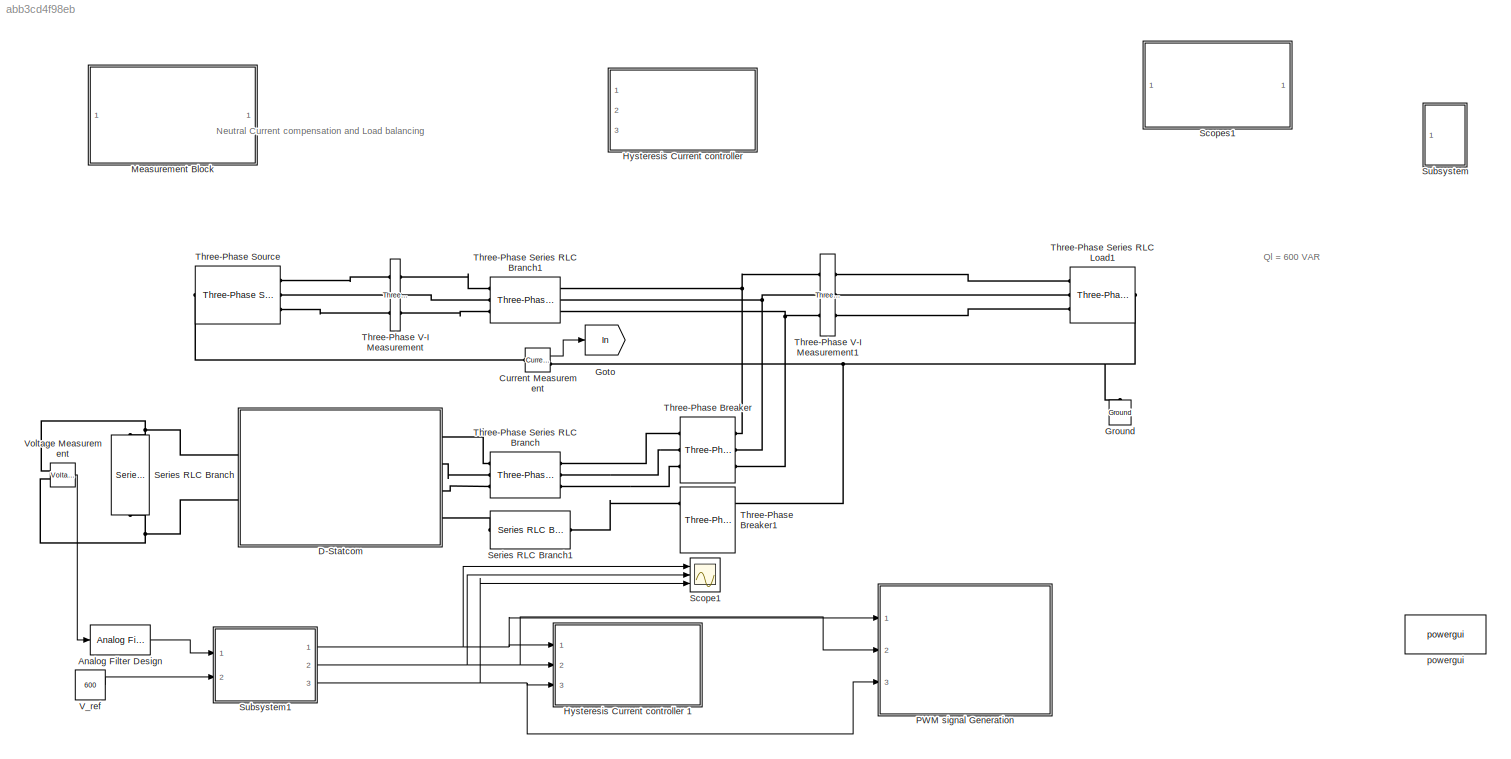
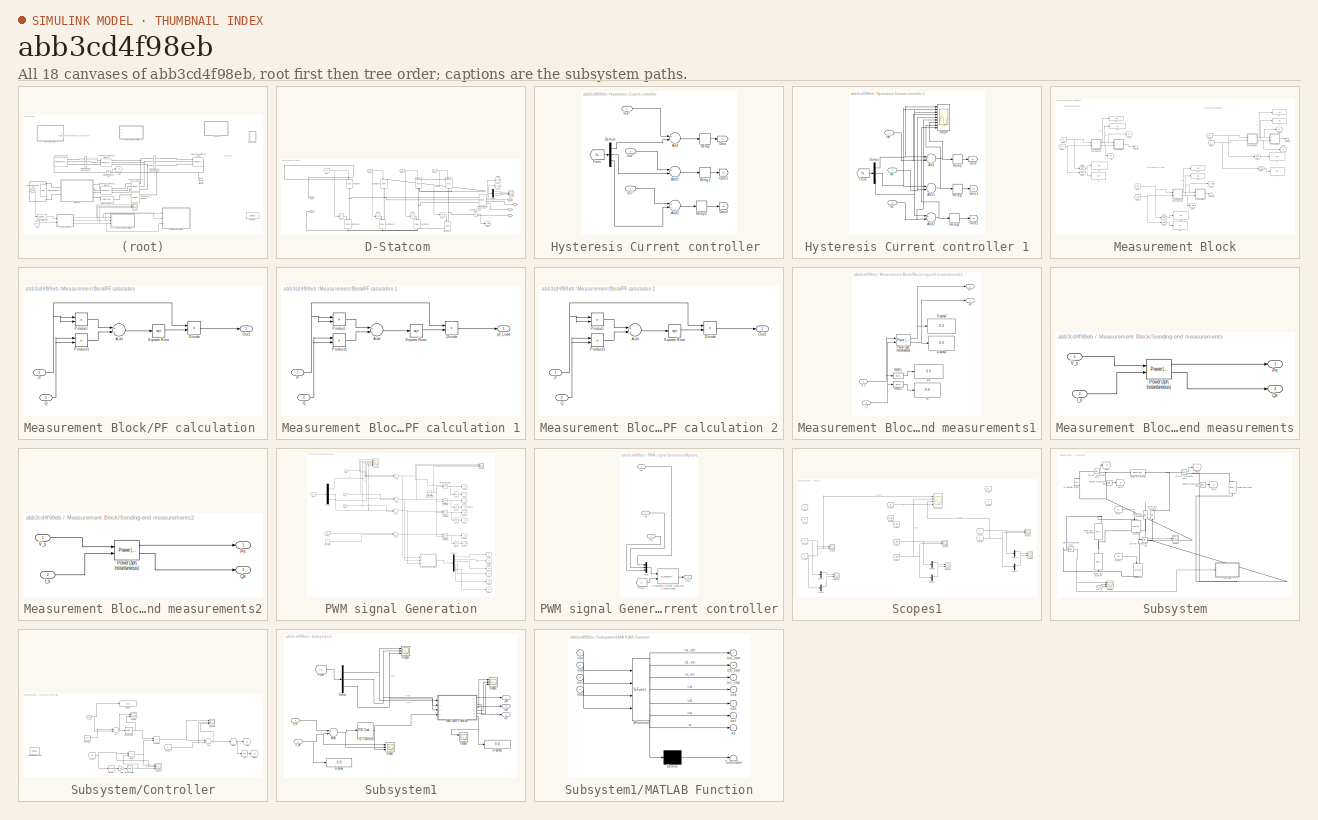
[diagram: thumbnail index - all 18 canvases of the model, root first then tree order]
MODEL slx_abb3cd4f98eb
KIND model
CONFIG AbsTol = auto
CONFIG EnableMultiTasking = off
CONFIG FixedStep = 1e-6
CONFIG MaxStep = 1e-5
CONFIG MinStep = auto
CONFIG RelTol = 1e-3
CONFIG SampleTimeConstraint = Unconstrained
CONFIG Solver = ode3
CONFIG SolverName = ode3
CONFIG StartTime = 0.0
CONFIG StopTime = 1
BLOCK [Reference] Analog Filter Design  REF=dsparch4/Analog
Filter Design
  Ports = [1, 1]
  SourceBlock = dsparch4/Analog\nFilter Design
  SourceProductBaseCode = DS
  SourceProductName = DSP System Toolbox
  SourceType = Analog Filter Design
BLOCK [Reference] Current Measurement  REF=powerlib/Measurements/Current Measurement
  Ports = [0, 1, 0, 0, 0, 1, 1]
  SourceBlock = powerlib/Measurements/Current Measurement
  SourceProductBaseCode = PS
  SourceProductName = Simscape Electrical
  SourceType = Current Measurement
  UserDataPersistent = on
BLOCK [SubSystem] D-Statcom 
  Ports = [0, 0, 0, 0, 0, 2, 4]
  RequestExecContextInheritance = off
BLOCK [PMIOPort] D-Statcom /+
  Port = 4
  Side = Left
BLOCK [PMIOPort] D-Statcom /-
  Port = 5
  Side = Left
BLOCK [Reference] D-Statcom /Current Measurement  REF=powerlib/Measurements/Current Measurement
  Ports = [0, 1, 0, 0, 0, 1, 1]
  SourceBlock = powerlib/Measurements/Current Measurement
  SourceProductBaseCode = PS
  SourceProductName = Simscape Electrical
  SourceType = Current Measurement
  UserDataPersistent = on
BLOCK [Demux] D-Statcom /Demux
  DisplayOption = bar
  Outputs = 3
  Ports = [1, 3]
BLOCK [From] D-Statcom /From
  GotoTag = s1
  TagVisibility = global
BLOCK [From] D-Statcom /From1
  GotoTag = s3
  TagVisibility = global
BLOCK [From] D-Statcom /From2
  GotoTag = s5
  TagVisibility = global
BLOCK [From] D-Statcom /From3
  GotoTag = sn
  TagVisibility = global
BLOCK [Goto] D-Statcom /Goto
  GotoTag = In_stat
BLOCK [Goto] D-Statcom /Goto3
  GotoTag = I_stat
  TagVisibility = global
BLOCK [Goto] D-Statcom /Goto4
  GotoTag = V_stat
  TagVisibility = global
BLOCK [Reference] D-Statcom /IGBT//Diode  REF=powerlib/Power
Electronics/IGBT//Diode
  Ports = [1, 0, 0, 0, 0, 1, 1]
  SourceBlock = powerlib/Power\nElectronics/IGBT//Diode
  SourceProductBaseCode = PS
  SourceProductName = Simscape Electrical
  SourceType = IGBT/Diode
BLOCK [Reference] D-Statcom /IGBT//Diode1  REF=powerlib/Power
Electronics/IGBT//Diode
  Ports = [1, 0, 0, 0, 0, 1, 1]
  SourceBlock = powerlib/Power\nElectronics/IGBT//Diode
  SourceProductBaseCode = PS
  SourceProductName = Simscape Electrical
  SourceType = IGBT/Diode
BLOCK [Reference] D-Statcom /IGBT//Diode2  REF=powerlib/Power
Electronics/IGBT//Diode
  Ports = [1, 0, 0, 0, 0, 1, 1]
  SourceBlock = powerlib/Power\nElectronics/IGBT//Diode
  SourceProductBaseCode = PS
  SourceProductName = Simscape Electrical
  SourceType = IGBT/Diode
BLOCK [Reference] D-Statcom /IGBT//Diode3  REF=powerlib/Power
Electronics/IGBT//Diode
  Ports = [1, 0, 0, 0, 0, 1, 1]
  SourceBlock = powerlib/Power\nElectronics/IGBT//Diode
  SourceProductBaseCode = PS
  SourceProductName = Simscape Electrical
  SourceType = IGBT/Diode
BLOCK [Reference] D-Statcom /IGBT//Diode4  REF=powerlib/Power
Electronics/IGBT//Diode
  Ports = [1, 0, 0, 0, 0, 1, 1]
  SourceBlock = powerlib/Power\nElectronics/IGBT//Diode
  SourceProductBaseCode = PS
  SourceProductName = Simscape Electrical
  SourceType = IGBT/Diode
BLOCK [Reference] D-Statcom /IGBT//Diode5  REF=powerlib/Power
Electronics/IGBT//Diode
  Ports = [1, 0, 0, 0, 0, 1, 1]
  SourceBlock = powerlib/Power\nElectronics/IGBT//Diode
  SourceProductBaseCode = PS
  SourceProductName = Simscape Electrical
  SourceType = IGBT/Diode
BLOCK [Reference] D-Statcom /IGBT//Diode6  REF=powerlib/Power
Electronics/IGBT//Diode
  Ports = [1, 0, 0, 0, 0, 1, 1]
  SourceBlock = powerlib/Power\nElectronics/IGBT//Diode
  SourceProductBaseCode = PS
  SourceProductName = Simscape Electrical
  SourceType = IGBT/Diode
BLOCK [Reference] D-Statcom /IGBT//Diode7  REF=powerlib/Power
Electronics/IGBT//Diode
  Ports = [1, 0, 0, 0, 0, 1, 1]
  SourceBlock = powerlib/Power\nElectronics/IGBT//Diode
  SourceProductBaseCode = PS
  SourceProductName = Simscape Electrical
  SourceType = IGBT/Diode
BLOCK [Logic] D-Statcom /NOT
  AllPortsSameDT = off
  IconShape = distinctive
  Operator = NOT
  OutDataTypeStr = boolean
  Ports = [1, 1]
BLOCK [Logic] D-Statcom /NOT1
  AllPortsSameDT = off
  IconShape = distinctive
  Operator = NOT
  OutDataTypeStr = boolean
  Ports = [1, 1]
BLOCK [Logic] D-Statcom /NOT2
  AllPortsSameDT = off
  IconShape = distinctive
  Operator = NOT
  OutDataTypeStr = boolean
  Ports = [1, 1]
BLOCK [Logic] D-Statcom /NOT3
  AllPortsSameDT = off
  IconShape = distinctive
  Operator = NOT
  OutDataTypeStr = boolean
  Ports = [1, 1]
BLOCK [Scope] D-Statcom /Scope
  Floating = off
  NumInputPorts = 3
  Ports = [3]
  ScopeSpecificationString = Simulink.scopes.TimeScopeBlockCfg('CurrentConfiguration', extmgr.ConfigurationSet(extmgr.Configuration('Core','General UI',true),extmgr.Configuration('Core','Source UI',true),extmgr.Configuration('Sources','WiredSimulink',true,'DataLoggingVariableName','ScopeData7'),extmgr.Configuration('Visuals','Time Domain',true,'SerializedDisplays',{struct('MinYLimReal','-6.05684','MaxYLimReal','8.20932','YLab...<+2807ch>
BLOCK [Reference] D-Statcom /Three-Phase V-I Measurement  REF=powerlib/Measurements/Three-Phase
V-I Measurement
  Ports = [0, 2, 0, 0, 0, 3, 3]
  SourceBlock = powerlib/Measurements/Three-Phase\nV-I Measurement
  SourceProductBaseCode = PS
  SourceProductName = Simscape Electrical
  SourceType = Three-Phase VI Measurement
BLOCK [PMIOPort] D-Statcom /a
  Side = Right
BLOCK [PMIOPort] D-Statcom /b
  Port = 2
  Side = Right
BLOCK [PMIOPort] D-Statcom /c
  Port = 3
  Side = Right
BLOCK [PMIOPort] D-Statcom /n
  Port = 6
  Side = Right
BLOCK [Goto] Goto
  GotoTag = In
  TagVisibility = global
BLOCK [Reference] Ground  REF=powerlib/Elements/Ground
  Ports = [0, 0, 0, 0, 0, 1]
  SourceBlock = powerlib/Elements/Ground
  SourceProductBaseCode = PS
  SourceProductName = Simscape Electrical
  SourceType = Ground
BLOCK [SubSystem] Hysteresis Current controller 
  Commented = on
  Ports = [3]
  RequestExecContextInheritance = off
BLOCK [Sum] Hysteresis Current controller /Add
  InputSameDT = off
  Inputs = +-
  OutDataTypeStr = Inherit: Inherit via internal rule
  Ports = [2, 1]
  SaturateOnIntegerOverflow = off
BLOCK [Sum] Hysteresis Current controller /Add1
  InputSameDT = off
  Inputs = +-
  OutDataTypeStr = Inherit: Inherit via internal rule
  Ports = [2, 1]
  SaturateOnIntegerOverflow = off
BLOCK [Sum] Hysteresis Current controller /Add2
  InputSameDT = off
  Inputs = +-
  OutDataTypeStr = Inherit: Inherit via internal rule
  Ports = [2, 1]
  SaturateOnIntegerOverflow = off
BLOCK [Demux] Hysteresis Current controller /Demux
  DisplayOption = bar
  Outputs = 3
  Ports = [1, 3]
BLOCK [From] Hysteresis Current controller /From
  GotoTag = Is
  TagVisibility = global
BLOCK [Goto] Hysteresis Current controller /Goto
  GotoTag = s1
  TagVisibility = global
BLOCK [Goto] Hysteresis Current controller /Goto1
  GotoTag = s3
  TagVisibility = global
BLOCK [Goto] Hysteresis Current controller /Goto2
  GotoTag = s5
  TagVisibility = global
BLOCK [Inport] Hysteresis Current controller /Isa*
  IconDisplay = Port number
BLOCK [Inport] Hysteresis Current controller /Isb*
  IconDisplay = Port number
  Port = 2
BLOCK [Inport] Hysteresis Current controller /Isc*
  IconDisplay = Port number
  Port = 3
BLOCK [Relay] Hysteresis Current controller /Relay
  OffSwitchValue = -0.1
  OnSwitchValue = 0.1
BLOCK [Relay] Hysteresis Current controller /Relay1
  OffSwitchValue = -0.1
  OnSwitchValue = 0.1
BLOCK [Relay] Hysteresis Current controller /Relay2
  OffSwitchValue = -0.1
  OnSwitchValue = 0.1
BLOCK [SubSystem] Hysteresis Current controller 1
  Commented = on
  Ports = [3]
  RequestExecContextInheritance = off
BLOCK [Sum] Hysteresis Current controller 1/Add
  InputSameDT = off
  Inputs = +-
  OutDataTypeStr = Inherit: Inherit via internal rule
  Ports = [2, 1]
  SaturateOnIntegerOverflow = off
BLOCK [Sum] Hysteresis Current controller 1/Add1
  InputSameDT = off
  Inputs = +-
  OutDataTypeStr = Inherit: Inherit via internal rule
  Ports = [2, 1]
  SaturateOnIntegerOverflow = off
BLOCK [Sum] Hysteresis Current controller 1/Add2
  InputSameDT = off
  Inputs = +-
  OutDataTypeStr = Inherit: Inherit via internal rule
  Ports = [2, 1]
  SaturateOnIntegerOverflow = off
BLOCK [Demux] Hysteresis Current controller 1/Demux
  DisplayOption = bar
  Outputs = 3
  Ports = [1, 3]
BLOCK [From] Hysteresis Current controller 1/From
  GotoTag = Is
  TagVisibility = global
BLOCK [Goto] Hysteresis Current controller 1/Goto
  GotoTag = s1
  TagVisibility = global
BLOCK [Goto] Hysteresis Current controller 1/Goto1
  GotoTag = s3
  TagVisibility = global
BLOCK [Goto] Hysteresis Current controller 1/Goto2
  GotoTag = s5
  TagVisibility = global
BLOCK [Inport] Hysteresis Current controller 1/Isa*
  IconDisplay = Port number
BLOCK [Inport] Hysteresis Current controller 1/Isb*
  IconDisplay = Port number
  Port = 2
BLOCK [Inport] Hysteresis Current controller 1/Isc*
  IconDisplay = Port number
  Port = 3
BLOCK [Relay] Hysteresis Current controller 1/Relay
  OffSwitchValue = -0.01
  OnSwitchValue = 0.01
BLOCK [Relay] Hysteresis Current controller 1/Relay1
  OffSwitchValue = -0.01
  OnSwitchValue = 0.01
BLOCK [Relay] Hysteresis Current controller 1/Relay2
  OffSwitchValue = -0.01
  OnSwitchValue = 0.01
BLOCK [Scope] Hysteresis Current controller 1/Scope
  Floating = off
  NumInputPorts = 9
  Ports = [9]
  ScopeSpecificationString = Simulink.scopes.TimeScopeBlockCfg('CurrentConfiguration', extmgr.ConfigurationSet(extmgr.Configuration('Core','General UI',true),extmgr.Configuration('Core','Source UI',true),extmgr.Configuration('Sources','WiredSimulink',true,'DataLoggingVariableName','ScopeData2'),extmgr.Configuration('Visuals','Time Domain',true,'SerializedDisplays',{struct('MinYLimReal','-162.09526','MaxYLimReal','283.68623','...<+6955ch>
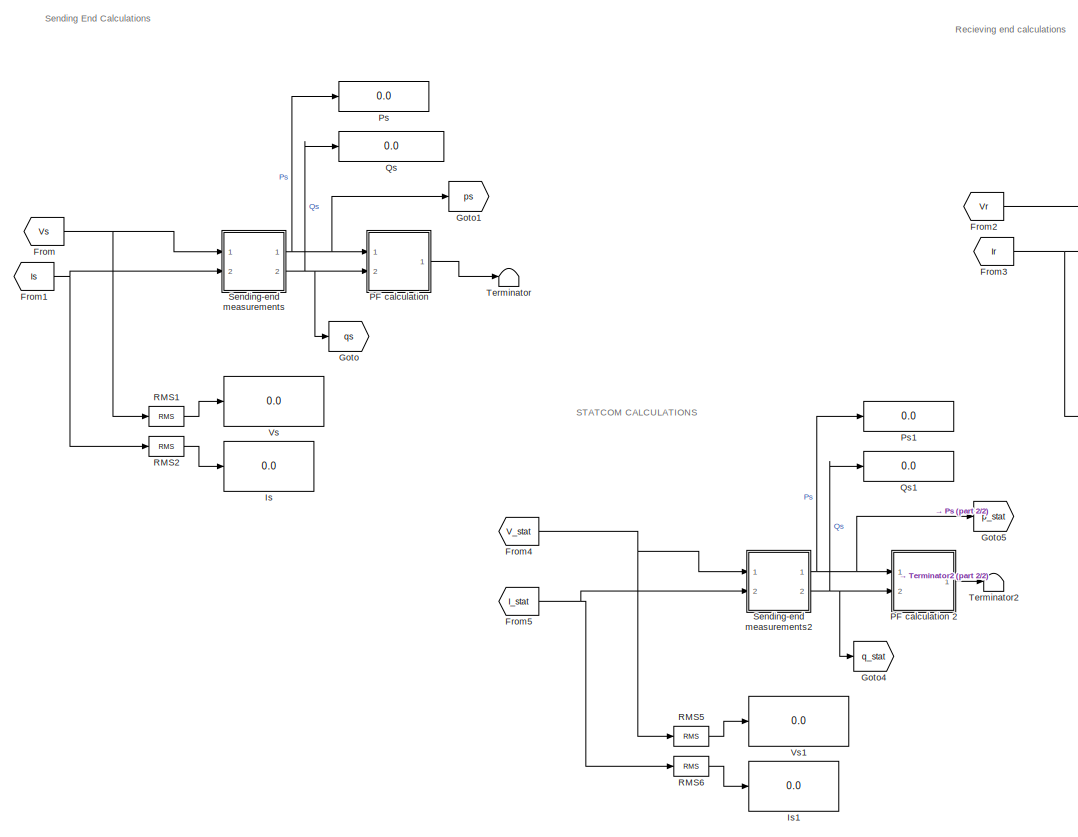
[diagram: Measurement Block - part 1/2, center side, full height]
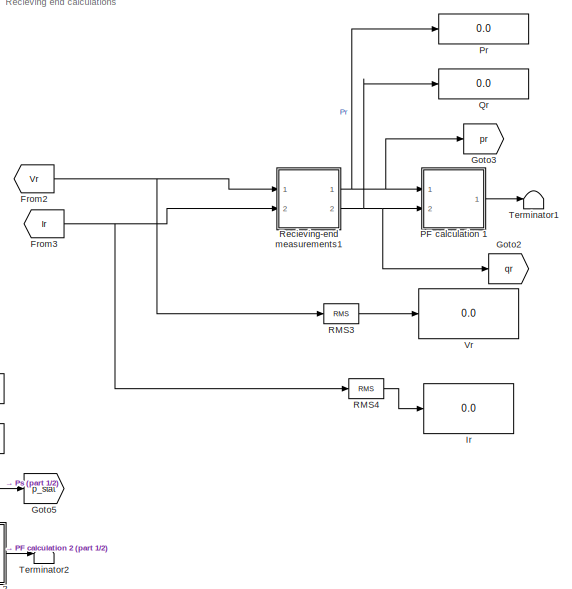
[diagram: Measurement Block - part 2/2, middle right region]
BLOCK [SubSystem] Measurement Block
  Ports = []
  RequestExecContextInheritance = off
BLOCK [From] Measurement Block/From
  GotoTag = Vs
  TagVisibility = global
BLOCK [From] Measurement Block/From1
  GotoTag = Is
  TagVisibility = global
BLOCK [From] Measurement Block/From2
  GotoTag = Vr
  TagVisibility = global
BLOCK [From] Measurement Block/From3
  GotoTag = Ir
  TagVisibility = global
BLOCK [From] Measurement Block/From4
  GotoTag = V_stat
  TagVisibility = global
BLOCK [From] Measurement Block/From5
  GotoTag = I_stat
  TagVisibility = global
BLOCK [Goto] Measurement Block/Goto
  GotoTag = qs
  TagVisibility = global
BLOCK [Goto] Measurement Block/Goto1
  GotoTag = ps
  TagVisibility = global
BLOCK [Goto] Measurement Block/Goto2
  GotoTag = qr
  TagVisibility = global
BLOCK [Goto] Measurement Block/Goto3
  GotoTag = pr
  TagVisibility = global
BLOCK [Goto] Measurement Block/Goto4
  GotoTag = q_stat
  TagVisibility = global
BLOCK [Goto] Measurement Block/Goto5
  GotoTag = p_stat
  TagVisibility = global
BLOCK [Display] Measurement Block/Ir
  Decimation = 1
  Ports = [1]
BLOCK [Display] Measurement Block/Is
  Decimation = 1
  Ports = [1]
BLOCK [Display] Measurement Block/Is1
  Decimation = 1
  Ports = [1]
BLOCK [SubSystem] Measurement Block/PF calculation 
  Ports = [2, 1]
  RequestExecContextInheritance = off
BLOCK [Sum] Measurement Block/PF calculation /Add
  InputSameDT = off
  OutDataTypeStr = Inherit: Inherit via internal rule
  Ports = [2, 1]
  SaturateOnIntegerOverflow = off
BLOCK [Product] Measurement Block/PF calculation /Divide
  InputSameDT = off
  Inputs = */
  OutDataTypeStr = Inherit: Inherit via internal rule
  Ports = [2, 1]
  RndMeth = Floor
  SaturateOnIntegerOverflow = off
BLOCK [Outport] Measurement Block/PF calculation /Out1
  IconDisplay = Port number
BLOCK [Inport] Measurement Block/PF calculation /P
  IconDisplay = Port number
BLOCK [Product] Measurement Block/PF calculation /Product
  InputSameDT = off
  OutDataTypeStr = Inherit: Inherit via internal rule
  Ports = [2, 1]
  RndMeth = Floor
  SaturateOnIntegerOverflow = off
BLOCK [Product] Measurement Block/PF calculation /Product1
  InputSameDT = off
  OutDataTypeStr = Inherit: Inherit via internal rule
  Ports = [2, 1]
  RndMeth = Floor
  SaturateOnIntegerOverflow = off
BLOCK [Inport] Measurement Block/PF calculation /Q
  IconDisplay = Port number
  Port = 2
BLOCK [Sqrt] Measurement Block/PF calculation /Square Root
BLOCK [SubSystem] Measurement Block/PF calculation 1
  Ports = [2, 1]
  RequestExecContextInheritance = off
BLOCK [Sum] Measurement Block/PF calculation 1/Add
  InputSameDT = off
  OutDataTypeStr = Inherit: Inherit via internal rule
  Ports = [2, 1]
  SaturateOnIntegerOverflow = off
BLOCK [Product] Measurement Block/PF calculation 1/Divide
  InputSameDT = off
  Inputs = */
  OutDataTypeStr = Inherit: Inherit via internal rule
  Ports = [2, 1]
  RndMeth = Floor
  SaturateOnIntegerOverflow = off
BLOCK [Inport] Measurement Block/PF calculation 1/P
  IconDisplay = Port number
BLOCK [Product] Measurement Block/PF calculation 1/Product
  InputSameDT = off
  OutDataTypeStr = Inherit: Inherit via internal rule
  Ports = [2, 1]
  RndMeth = Floor
  SaturateOnIntegerOverflow = off
BLOCK [Product] Measurement Block/PF calculation 1/Product1
  InputSameDT = off
  OutDataTypeStr = Inherit: Inherit via internal rule
  Ports = [2, 1]
  RndMeth = Floor
  SaturateOnIntegerOverflow = off
BLOCK [Inport] Measurement Block/PF calculation 1/Q
  IconDisplay = Port number
  Port = 2
BLOCK [Sqrt] Measurement Block/PF calculation 1/Square Root
BLOCK [Outport] Measurement Block/PF calculation 1/pf_Load
  IconDisplay = Port number
BLOCK [SubSystem] Measurement Block/PF calculation 2
  Ports = [2, 1]
  RequestExecContextInheritance = off
BLOCK [Sum] Measurement Block/PF calculation 2/Add
  InputSameDT = off
  OutDataTypeStr = Inherit: Inherit via internal rule
  Ports = [2, 1]
  SaturateOnIntegerOverflow = off
BLOCK [Product] Measurement Block/PF calculation 2/Divide
  InputSameDT = off
  Inputs = */
  OutDataTypeStr = Inherit: Inherit via internal rule
  Ports = [2, 1]
  RndMeth = Floor
  SaturateOnIntegerOverflow = off
BLOCK [Outport] Measurement Block/PF calculation 2/Out1
  IconDisplay = Port number
BLOCK [Inport] Measurement Block/PF calculation 2/P
  IconDisplay = Port number
BLOCK [Product] Measurement Block/PF calculation 2/Product
  InputSameDT = off
  OutDataTypeStr = Inherit: Inherit via internal rule
  Ports = [2, 1]
  RndMeth = Floor
  SaturateOnIntegerOverflow = off
BLOCK [Product] Measurement Block/PF calculation 2/Product1
  InputSameDT = off
  OutDataTypeStr = Inherit: Inherit via internal rule
  Ports = [2, 1]
  RndMeth = Floor
  SaturateOnIntegerOverflow = off
BLOCK [Inport] Measurement Block/PF calculation 2/Q
  IconDisplay = Port number
  Port = 2
BLOCK [Sqrt] Measurement Block/PF calculation 2/Square Root
BLOCK [Display] Measurement Block/Pr
  Decimation = 1
  Ports = [1]
BLOCK [Display] Measurement Block/Ps
  Decimation = 1
  Ports = [1]
BLOCK [Display] Measurement Block/Ps1
  Decimation = 1
  Ports = [1]
BLOCK [Display] Measurement Block/Qr
  Decimation = 1
  Ports = [1]
BLOCK [Display] Measurement Block/Qs
  Decimation = 1
  Format = short_e
  Ports = [1]
BLOCK [Display] Measurement Block/Qs1
  Decimation = 1
  Ports = [1]
BLOCK [Reference] Measurement Block/RMS1  REF=powerlib_meascontrol/Measurements/RMS
  Ports = [1, 1]
  SourceBlock = powerlib_meascontrol/Measurements/RMS
  SourceProductBaseCode = PS
  SourceProductName = Simscape Electrical
  SourceType = RMS
BLOCK [Reference] Measurement Block/RMS2  REF=powerlib_meascontrol/Measurements/RMS
  Ports = [1, 1]
  SourceBlock = powerlib_meascontrol/Measurements/RMS
  SourceProductBaseCode = PS
  SourceProductName = Simscape Electrical
  SourceType = RMS
BLOCK [Reference] Measurement Block/RMS3  REF=powerlib_meascontrol/Measurements/RMS
  Ports = [1, 1]
  SourceBlock = powerlib_meascontrol/Measurements/RMS
  SourceProductBaseCode = PS
  SourceProductName = Simscape Electrical
  SourceType = RMS
BLOCK [Reference] Measurement Block/RMS4  REF=powerlib_meascontrol/Measurements/RMS
  Ports = [1, 1]
  SourceBlock = powerlib_meascontrol/Measurements/RMS
  SourceProductBaseCode = PS
  SourceProductName = Simscape Electrical
  SourceType = RMS
BLOCK [Reference] Measurement Block/RMS5  REF=powerlib_meascontrol/Measurements/RMS
  Ports = [1, 1]
  SourceBlock = powerlib_meascontrol/Measurements/RMS
  SourceProductBaseCode = PS
  SourceProductName = Simscape Electrical
  SourceType = RMS
BLOCK [Reference] Measurement Block/RMS6  REF=powerlib_meascontrol/Measurements/RMS
  Ports = [1, 1]
  SourceBlock = powerlib_meascontrol/Measurements/RMS
  SourceProductBaseCode = PS
  SourceProductName = Simscape Electrical
  SourceType = RMS
BLOCK [SubSystem] Measurement Block/Recieving-end measurements1
  Ports = [2, 2]
  RequestExecContextInheritance = off
BLOCK [Display] Measurement Block/Recieving-end measurements1/Display4
  Decimation = 1
  Ports = [1]
BLOCK [Display] Measurement Block/Recieving-end measurements1/Display5
  Decimation = 1
  Ports = [1]
BLOCK [Inport] Measurement Block/Recieving-end measurements1/I_r
  IconDisplay = Port number
  Port = 2
BLOCK [Display] Measurement Block/Recieving-end measurements1/Is
  Decimation = 1
  Ports = [1]
BLOCK [Reference] Measurement Block/Recieving-end measurements1/Power (3ph, Instantaneous)  REF=powerlib_meascontrol/Measurements/Power
(3ph, Instantaneous)
  Ports = [2, 2]
  SourceBlock = powerlib_meascontrol/Measurements/Power\n(3ph, Instantaneous)
  SourceProductBaseCode = PS
  SourceProductName = Simscape Electrical
  SourceType = Power (3ph, Instantaneous)
BLOCK [Outport] Measurement Block/Recieving-end measurements1/Pr
  IconDisplay = Port number
BLOCK [Outport] Measurement Block/Recieving-end measurements1/Qr
  IconDisplay = Port number
  Port = 2
BLOCK [Reference] Measurement Block/Recieving-end measurements1/RMS1  REF=powerlib_meascontrol/Measurements/RMS
  Ports = [1, 1]
  SourceBlock = powerlib_meascontrol/Measurements/RMS
  SourceProductBaseCode = PS
  SourceProductName = Simscape Electrical
  SourceType = RMS
BLOCK [Reference] Measurement Block/Recieving-end measurements1/RMS2  REF=powerlib_meascontrol/Measurements/RMS
  Ports = [1, 1]
  SourceBlock = powerlib_meascontrol/Measurements/RMS
  SourceProductBaseCode = PS
  SourceProductName = Simscape Electrical
  SourceType = RMS
BLOCK [Inport] Measurement Block/Recieving-end measurements1/V_r
  IconDisplay = Port number
BLOCK [Display] Measurement Block/Recieving-end measurements1/Vs
  Decimation = 1
  Ports = [1]
BLOCK [SubSystem] Measurement Block/Sending-end measurements
  Ports = [2, 2]
  RequestExecContextInheritance = off
BLOCK [Inport] Measurement Block/Sending-end measurements/I_s
  IconDisplay = Port number
  Port = 2
BLOCK [Reference] Measurement Block/Sending-end measurements/Power (3ph, Instantaneous)  REF=powerlib_meascontrol/Measurements/Power
(3ph, Instantaneous)
  Ports = [2, 2]
  SourceBlock = powerlib_meascontrol/Measurements/Power\n(3ph, Instantaneous)
  SourceProductBaseCode = PS
  SourceProductName = Simscape Electrical
  SourceType = Power (3ph, Instantaneous)
BLOCK [Outport] Measurement Block/Sending-end measurements/Ps
  IconDisplay = Port number
BLOCK [Outport] Measurement Block/Sending-end measurements/Qs
  IconDisplay = Port number
  Port = 2
BLOCK [Inport] Measurement Block/Sending-end measurements/V_s
  IconDisplay = Port number
BLOCK [SubSystem] Measurement Block/Sending-end measurements2
  Ports = [2, 2]
  RequestExecContextInheritance = off
BLOCK [Inport] Measurement Block/Sending-end measurements2/I_s
  IconDisplay = Port number
  Port = 2
BLOCK [Reference] Measurement Block/Sending-end measurements2/Power (3ph, Instantaneous)  REF=powerlib_meascontrol/Measurements/Power
(3ph, Instantaneous)
  Ports = [2, 2]
  SourceBlock = powerlib_meascontrol/Measurements/Power\n(3ph, Instantaneous)
  SourceProductBaseCode = PS
  SourceProductName = Simscape Electrical
  SourceType = Power (3ph, Instantaneous)
BLOCK [Outport] Measurement Block/Sending-end measurements2/Ps
  IconDisplay = Port number
BLOCK [Outport] Measurement Block/Sending-end measurements2/Qs
  IconDisplay = Port number
  Port = 2
BLOCK [Inport] Measurement Block/Sending-end measurements2/V_s
  IconDisplay = Port number
BLOCK [Terminator] Measurement Block/Terminator
BLOCK [Terminator] Measurement Block/Terminator1
BLOCK [Terminator] Measurement Block/Terminator2
BLOCK [Display] Measurement Block/Vr
  Decimation = 1
  Ports = [1]
BLOCK [Display] Measurement Block/Vs
  Decimation = 1
  Ports = [1]
BLOCK [Display] Measurement Block/Vs1
  Decimation = 1
  Ports = [1]
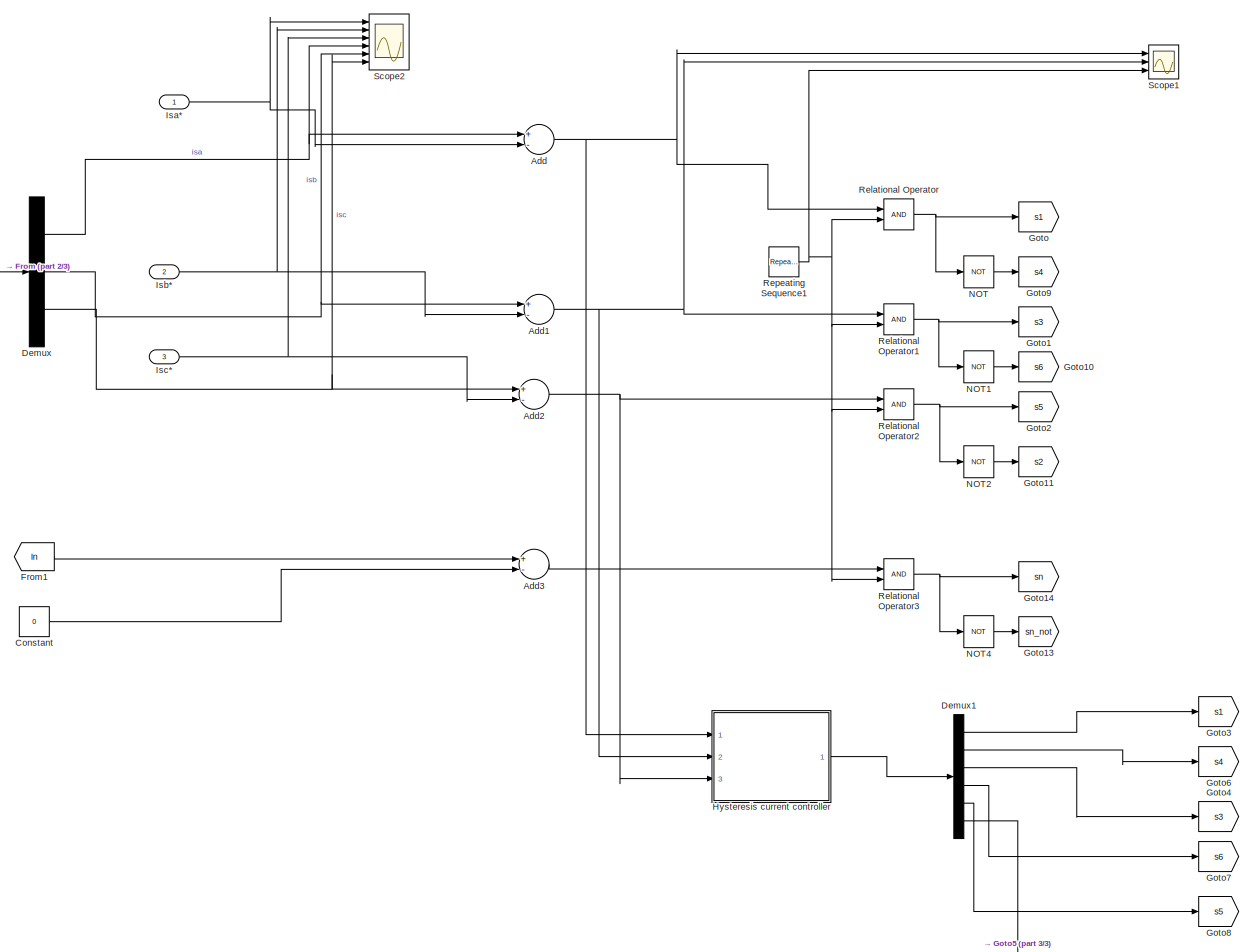
[diagram: PWM signal Generation - part 1/3, most of the canvas]
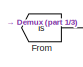
[diagram: PWM signal Generation - part 2/3, top left region]
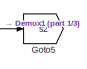
[diagram: PWM signal Generation - part 3/3, bottom right region]
BLOCK [SubSystem] PWM signal Generation
  Ports = [3]
  RequestExecContextInheritance = off
BLOCK [Sum] PWM signal Generation/Add
  InputSameDT = off
  Inputs = +-
  OutDataTypeStr = Inherit: Inherit via internal rule
  Ports = [2, 1]
  SaturateOnIntegerOverflow = off
BLOCK [Sum] PWM signal Generation/Add1
  InputSameDT = off
  Inputs = +-
  OutDataTypeStr = Inherit: Inherit via internal rule
  Ports = [2, 1]
  SaturateOnIntegerOverflow = off
BLOCK [Sum] PWM signal Generation/Add2
  InputSameDT = off
  Inputs = +-
  OutDataTypeStr = Inherit: Inherit via internal rule
  Ports = [2, 1]
  SaturateOnIntegerOverflow = off
BLOCK [Sum] PWM signal Generation/Add3
  InputSameDT = off
  Inputs = +-
  OutDataTypeStr = Inherit: Inherit via internal rule
  Ports = [2, 1]
  SaturateOnIntegerOverflow = off
BLOCK [Constant] PWM signal Generation/Constant
  Value = 0
BLOCK [Demux] PWM signal Generation/Demux
  DisplayOption = bar
  Outputs = 3
  Ports = [1, 3]
BLOCK [Demux] PWM signal Generation/Demux1
  Commented = on
  DisplayOption = bar
  Outputs = 6
  Ports = [1, 6]
BLOCK [From] PWM signal Generation/From
  GotoTag = Is
  TagVisibility = global
BLOCK [From] PWM signal Generation/From1
  GotoTag = In
  TagVisibility = global
BLOCK [Goto] PWM signal Generation/Goto
  GotoTag = s1
  TagVisibility = global
BLOCK [Goto] PWM signal Generation/Goto1
  GotoTag = s3
  TagVisibility = global
BLOCK [Goto] PWM signal Generation/Goto10
  GotoTag = s6
  TagVisibility = global
BLOCK [Goto] PWM signal Generation/Goto11
  GotoTag = s2
  TagVisibility = global
BLOCK [Goto] PWM signal Generation/Goto13
  GotoTag = sn_not
  TagVisibility = global
BLOCK [Goto] PWM signal Generation/Goto14
  GotoTag = sn
  TagVisibility = global
BLOCK [Goto] PWM signal Generation/Goto2
  GotoTag = s5
  TagVisibility = global
BLOCK [Goto] PWM signal Generation/Goto3
  Commented = on
  GotoTag = s1
  TagVisibility = global
BLOCK [Goto] PWM signal Generation/Goto4
  Commented = on
  GotoTag = s3
  TagVisibility = global
BLOCK [Goto] PWM signal Generation/Goto5
  Commented = on
  GotoTag = s2
  TagVisibility = global
BLOCK [Goto] PWM signal Generation/Goto6
  Commented = on
  GotoTag = s4
  TagVisibility = global
BLOCK [Goto] PWM signal Generation/Goto7
  Commented = on
  GotoTag = s6
  TagVisibility = global
BLOCK [Goto] PWM signal Generation/Goto8
  Commented = on
  GotoTag = s5
  TagVisibility = global
BLOCK [Goto] PWM signal Generation/Goto9
  GotoTag = s4
  TagVisibility = global
BLOCK [SubSystem] PWM signal Generation/Hysteresis current controller
  Commented = on
  Ports = [3, 1]
  RequestExecContextInheritance = off
BLOCK [From] PWM signal Generation/Hysteresis current controller/From1
  GotoTag = Ir
  TagVisibility = global
BLOCK [Reference] PWM signal Generation/Hysteresis current controller/Hysteresis Current Controller (Three-Phase)  REF=eeHysteresisControl/Hysteresis Current
Controller
(Three-Phase)
  Ports = [2, 1]
  SourceBlock = eeHysteresisControl/Hysteresis Current\nController\n(Three-Phase)
  SourceProductBaseCode = PS
  SourceProductName = Simscape Electrical
  SourceType = Hysteresis Current Controller (Three-Phase)
BLOCK [Inport] PWM signal Generation/Hysteresis current controller/In1
  IconDisplay = Port number
BLOCK [Inport] PWM signal Generation/Hysteresis current controller/In2
  IconDisplay = Port number
  Port = 2
BLOCK [Inport] PWM signal Generation/Hysteresis current controller/In3
  IconDisplay = Port number
  Port = 3
BLOCK [Mux] PWM signal Generation/Hysteresis current controller/Mux
  DisplayOption = bar
  Inputs = 3
  Ports = [3, 1]
BLOCK [Outport] PWM signal Generation/Hysteresis current controller/Out1
  IconDisplay = Port number
BLOCK [Inport] PWM signal Generation/Isa*
  IconDisplay = Port number
BLOCK [Inport] PWM signal Generation/Isb*
  IconDisplay = Port number
  Port = 2
BLOCK [Inport] PWM signal Generation/Isc*
  IconDisplay = Port number
  Port = 3
BLOCK [Logic] PWM signal Generation/NOT
  AllPortsSameDT = off
  IconShape = distinctive
  Operator = NOT
  OutDataTypeStr = boolean
  Ports = [1, 1]
BLOCK [Logic] PWM signal Generation/NOT1
  AllPortsSameDT = off
  IconShape = distinctive
  Operator = NOT
  OutDataTypeStr = boolean
  Ports = [1, 1]
BLOCK [Logic] PWM signal Generation/NOT2
  AllPortsSameDT = off
  IconShape = distinctive
  Operator = NOT
  OutDataTypeStr = boolean
  Ports = [1, 1]
BLOCK [Logic] PWM signal Generation/NOT4
  AllPortsSameDT = off
  IconShape = distinctive
  Operator = NOT
  OutDataTypeStr = boolean
  Ports = [1, 1]
BLOCK [RelationalOperator] PWM signal Generation/Relational Operator
  InputSameDT = off
  OutDataTypeStr = boolean
  Ports = [2, 1]
  RndMeth = Simplest
BLOCK [RelationalOperator] PWM signal Generation/Relational Operator1
  InputSameDT = off
  OutDataTypeStr = boolean
  Ports = [2, 1]
  RndMeth = Simplest
BLOCK [RelationalOperator] PWM signal Generation/Relational Operator2
  InputSameDT = off
  OutDataTypeStr = boolean
  Ports = [2, 1]
  RndMeth = Simplest
BLOCK [RelationalOperator] PWM signal Generation/Relational Operator3
  InputSameDT = off
  OutDataTypeStr = boolean
  Ports = [2, 1]
  RndMeth = Simplest
BLOCK [Reference] PWM signal Generation/Repeating Sequence1  REF=simulink/Sources/Repeating
Sequence
  Ports = [0, 1]
  SourceBlock = simulink/Sources/Repeating\nSequence
  SourceProductBaseCode = SL
  SourceProductName = Simulink
  SourceType = Repeating table
BLOCK [Scope] PWM signal Generation/Scope1
  Floating = off
  NumInputPorts = 3
  Ports = [3]
  ScopeSpecificationString = Simulink.scopes.TimeScopeBlockCfg('CurrentConfiguration', extmgr.ConfigurationSet(extmgr.Configuration('Core','General UI',true),extmgr.Configuration('Core','Source UI',true),extmgr.Configuration('Sources','WiredSimulink',true,'DataLoggingVariableName','ScopeData2'),extmgr.Configuration('Visuals','Time Domain',true,'SerializedDisplays',{struct('MinYLimReal','-210.09775','MaxYLimReal','81.28654','Y...<+2873ch>
BLOCK [Scope] PWM signal Generation/Scope2
  Floating = off
  NumInputPorts = 6
  Ports = [6]
  ScopeSpecificationString = Simulink.scopes.TimeScopeBlockCfg('CurrentConfiguration', extmgr.ConfigurationSet(extmgr.Configuration('Core','General UI',true),extmgr.Configuration('Core','Source UI',true),extmgr.Configuration('Sources','WiredSimulink',true,'DataLoggingVariableName','ScopeData5'),extmgr.Configuration('Visuals','Time Domain',true,'SerializedDisplays',{struct('MinYLimReal','-80.58751','MaxYLimReal','210.86131','Y...<+4969ch>
BLOCK [Scope] Scope1
  Floating = off
  NumInputPorts = 3
  Ports = [3]
  ScopeSpecificationString = Simulink.scopes.TimeScopeBlockCfg('CurrentConfiguration', extmgr.ConfigurationSet(extmgr.Configuration('Core','General UI',true),extmgr.Configuration('Core','Source UI',true),extmgr.Configuration('Sources','WiredSimulink',true,'DataLoggingVariableName','ScopeData9'),extmgr.Configuration('Visuals','Time Domain',true,'SerializedDisplays',{struct('MinYLimReal','-80.58752','MaxYLimReal','210.86131','Y...<+2890ch>
BLOCK [SubSystem] Scopes1
  Ports = []
  RequestExecContextInheritance = off
BLOCK [Demux] Scopes1/Demux
  DisplayOption = bar
  Outputs = 3
  Ports = [1, 3]
BLOCK [Demux] Scopes1/Demux1
  DisplayOption = bar
  Outputs = 3
  Ports = [1, 3]
BLOCK [Demux] Scopes1/Demux2
  DisplayOption = bar
  Outputs = 3
  Ports = [1, 3]
BLOCK [Demux] Scopes1/Demux3
  DisplayOption = bar
  Outputs = 3
  Ports = [1, 3]
BLOCK [Demux] Scopes1/Demux4
  DisplayOption = bar
  Outputs = 3
  Ports = [1, 3]
BLOCK [Demux] Scopes1/Demux5
  DisplayOption = bar
  Outputs = 3
  Ports = [1, 3]
BLOCK [Scope] Scopes1/Final Scope
  Floating = off
  NumInputPorts = 4
  Ports = [4]
  ScopeSpecificationString = Simulink.scopes.TimeScopeBlockCfg('CurrentConfiguration', extmgr.ConfigurationSet(extmgr.Configuration('Core','General UI',true),extmgr.Configuration('Core','Source UI',true),extmgr.Configuration('Sources','WiredSimulink',true,'DataLoggingVariableName','ScopeData1'),extmgr.Configuration('Visuals','Time Domain',true,'SerializedDisplays',{struct('MinYLimReal','-10.27461','MaxYLimReal','10.27461','YL...<+3599ch>
BLOCK [From] Scopes1/From
  GotoTag = ps
  TagVisibility = global
BLOCK [From] Scopes1/From1
  GotoTag = qs
  TagVisibility = global
BLOCK [From] Scopes1/From10
  GotoTag = V_stat
  TagVisibility = global
BLOCK [From] Scopes1/From11
  GotoTag = I_stat
  TagVisibility = global
BLOCK [From] Scopes1/From12
  GotoTag = In
  TagVisibility = global
BLOCK [From] Scopes1/From2
  GotoTag = pr
  TagVisibility = global
BLOCK [From] Scopes1/From3
  GotoTag = qr
  TagVisibility = global
BLOCK [From] Scopes1/From4
  GotoTag = p_stat
  TagVisibility = global
BLOCK [From] Scopes1/From5
  GotoTag = q_stat
  TagVisibility = global
BLOCK [From] Scopes1/From6
  GotoTag = Vs
  TagVisibility = global
BLOCK [From] Scopes1/From7
  GotoTag = Is
  TagVisibility = global
BLOCK [From] Scopes1/From8
  GotoTag = Vr
  TagVisibility = global
BLOCK [From] Scopes1/From9
  GotoTag = Ir
  TagVisibility = global
BLOCK [Scope] Scopes1/Scope
  Floating = off
  NumInputPorts = 2
  Ports = [2]
  ScopeSpecificationString = Simulink.scopes.TimeScopeBlockCfg('CurrentConfiguration', extmgr.ConfigurationSet(extmgr.Configuration('Core','General UI',true),extmgr.Configuration('Core','Source UI',true),extmgr.Configuration('Sources','WiredSimulink',true),extmgr.Configuration('Visuals','Time Domain',true,'SerializedDisplays',{struct('MinYLimReal','-423.55759','MaxYLimReal','423.55759','YLabelReal','','MinYLimMag',' 0.00000',...<+2122ch>
BLOCK [Scope] Scopes1/Scope1
  Floating = off
  NumInputPorts = 2
  Ports = [2]
  ScopeSpecificationString = Simulink.scopes.TimeScopeBlockCfg('CurrentConfiguration', extmgr.ConfigurationSet(extmgr.Configuration('Core','General UI',true),extmgr.Configuration('Core','Source UI',true),extmgr.Configuration('Sources','WiredSimulink',true,'DataLoggingVariableName','ScopeData1'),extmgr.Configuration('Visuals','Time Domain',true,'SerializedDisplays',{struct('MinYLimReal','-250.00000','MaxYLimReal','250.00000','...<+2129ch>
BLOCK [Scope] Scopes1/Scope2
  Floating = off
  NumInputPorts = 2
  Ports = [2]
  ScopeSpecificationString = Simulink.scopes.TimeScopeBlockCfg('CurrentConfiguration', extmgr.ConfigurationSet(extmgr.Configuration('Core','General UI',true),extmgr.Configuration('Core','Source UI',true),extmgr.Configuration('Sources','WiredSimulink',true,'DataLoggingVariableName','ScopeData2'),extmgr.Configuration('Visuals','Time Domain',true,'SerializedDisplays',{struct('MinYLimReal','-210038.8036','MaxYLimReal','199537.462...<+2171ch>
BLOCK [Scope] Scopes1/Scope3
  Floating = off
  NumInputPorts = 2
  Ports = [2]
  ScopeSpecificationString = Simulink.scopes.TimeScopeBlockCfg('CurrentConfiguration', extmgr.ConfigurationSet(extmgr.Configuration('Core','General UI',true),extmgr.Configuration('Core','Source UI',true),extmgr.Configuration('Sources','WiredSimulink',true,'DataLoggingVariableName','ScopeData3'),extmgr.Configuration('Visuals','Time Domain',true,'SerializedDisplays',{struct('MinYLimReal','-250.00000','MaxYLimReal','250.00000','...<+2099ch>
BLOCK [Scope] Scopes1/Scope4
  Floating = off
  NumInputPorts = 2
  Ports = [2]
  ScopeSpecificationString = Simulink.scopes.TimeScopeBlockCfg('CurrentConfiguration', extmgr.ConfigurationSet(extmgr.Configuration('Core','General UI',true),extmgr.Configuration('Core','Source UI',true),extmgr.Configuration('Sources','WiredSimulink',true,'DataLoggingVariableName','ScopeData1'),extmgr.Configuration('Visuals','Time Domain',true,'SerializedDisplays',{struct('MinYLimReal','-810.89853','MaxYLimReal','872.25636','...<+3551ch>
BLOCK [Scope] Scopes1/Scope5
  Floating = off
  NumInputPorts = 2
  Ports = [2]
  ScopeSpecificationString = Simulink.scopes.TimeScopeBlockCfg('CurrentConfiguration', extmgr.ConfigurationSet(extmgr.Configuration('Core','General UI',true),extmgr.Configuration('Core','Source UI',true),extmgr.Configuration('Sources','WiredSimulink',true,'DataLoggingVariableName','ScopeData2'),extmgr.Configuration('Visuals','Time Domain',true,'SerializedDisplays',{struct('MinYLimReal','-507.34125','MaxYLimReal','507.33609','...<+2099ch>
BLOCK [Reference] Series RLC Branch  REF=powerlib/Elements/Series RLC Branch
  Ports = [0, 0, 0, 0, 0, 1, 1]
  SourceBlock = powerlib/Elements/Series RLC Branch
  SourceProductBaseCode = PS
  SourceProductName = Simscape Electrical
  SourceType = Series RLC Branch
BLOCK [Reference] Series RLC Branch1  REF=powerlib/Elements/Series RLC Branch
  Ports = [0, 0, 0, 0, 0, 1, 1]
  SourceBlock = powerlib/Elements/Series RLC Branch
  SourceProductBaseCode = PS
  SourceProductName = Simscape Electrical
  SourceType = Series RLC Branch
BLOCK [SubSystem] Subsystem
  Commented = on
  Ports = [1]
  RequestExecContextInheritance = off
BLOCK [Reference] Subsystem/AC Voltage Source  REF=powerlib/Electrical
Sources/AC Voltage Source
  Ports = [0, 0, 0, 0, 0, 1, 1]
  SourceBlock = powerlib/Electrical\nSources/AC Voltage Source
  SourceProductBaseCode = PS
  SourceProductName = Simscape Electrical
  SourceType = AC Voltage Source
BLOCK [SubSystem] Subsystem/Controller
  Ports = [1]
  RequestExecContextInheritance = off
BLOCK [Sum] Subsystem/Controller/Add
  InputSameDT = off
  Inputs = +-
  OutDataTypeStr = Inherit: Inherit via internal rule
  Ports = [2, 1]
  SaturateOnIntegerOverflow = off
BLOCK [Sum] Subsystem/Controller/Add1
  InputSameDT = off
  Inputs = +-
  OutDataTypeStr = Inherit: Inherit via internal rule
  Ports = [2, 1]
  SaturateOnIntegerOverflow = off
BLOCK [Constant] Subsystem/Controller/Constant
  Value = 800
BLOCK [Display] Subsystem/Controller/Display
  Decimation = 1
  Ports = [1]
BLOCK [Product] Subsystem/Controller/Divide
  InputSameDT = off
  Inputs = */
  OutDataTypeStr = Inherit: Inherit via internal rule
  Ports = [2, 1]
  RndMeth = Floor
  SaturateOnIntegerOverflow = off
BLOCK [From] Subsystem/Controller/From
  GotoTag = Vs
  TagVisibility = global
BLOCK [From] Subsystem/Controller/From1
  GotoTag = Is
  TagVisibility = global
BLOCK [Gain] Subsystem/Controller/Gain
  Gain = 2/3
  OutDataTypeStr = Inherit: Inherit via internal rule
  ParamDataTypeStr = Inherit: Inherit via internal rule
  SaturateOnIntegerOverflow = off
BLOCK [Goto] Subsystem/Controller/Goto
  GotoTag = S1
BLOCK [Goto] Subsystem/Controller/Goto1
  GotoTag = s2
BLOCK [Logic] Subsystem/Controller/NOT
  AllPortsSameDT = off
  IconShape = distinctive
  Operator = NOT
  OutDataTypeStr = boolean
  Ports = [1, 1]
BLOCK [Reference] Subsystem/Controller/PID Controller  REF=simulink/Continuous/PID Controller
  Ports = [1, 1]
  SourceBlock = simulink/Continuous/PID Controller
  SourceProductBaseCode = SL
  SourceProductName = Simulink
  SourceType = PID 1dof
BLOCK [Product] Subsystem/Controller/Product
  InputSameDT = off
  OutDataTypeStr = Inherit: Inherit via internal rule
  Ports = [2, 1]
  RndMeth = Floor
  SaturateOnIntegerOverflow = off
BLOCK [Relay] Subsystem/Controller/Relay
  OffSwitchValue = -1
  OnSwitchValue = 1
BLOCK [Scope] Subsystem/Controller/Scope
  Floating = off
  NumInputPorts = 2
  Ports = [2]
  ScopeSpecificationString = Simulink.scopes.TimeScopeBlockCfg('CurrentConfiguration', extmgr.ConfigurationSet(extmgr.Configuration('Core','General UI',true),extmgr.Configuration('Core','Source UI',true),extmgr.Configuration('Sources','WiredSimulink',true,'DataLoggingVariableName','ScopeData3'),extmgr.Configuration('Visuals','Time Domain',true,'SerializedDisplays',{struct('MinYLimReal','625.81715','MaxYLimReal','819.35365','Y...<+2069ch>
BLOCK [Scope] Subsystem/Controller/Scope1
  Floating = off
  NumInputPorts = 3
  Ports = [3]
  ScopeSpecificationString = Simulink.scopes.TimeScopeBlockCfg('CurrentConfiguration', extmgr.ConfigurationSet(extmgr.Configuration('Core','General UI',true),extmgr.Configuration('Core','Source UI',true),extmgr.Configuration('Sources','WiredSimulink',true,'DataLoggingVariableName','ScopeData5'),extmgr.Configuration('Visuals','Time Domain',true,'SerializedDisplays',{struct('MinYLimReal','-129.88997','MaxYLimReal','131.18042','...<+2824ch>
BLOCK [Scope] Subsystem/Controller/Scope2
  Floating = off
  NumInputPorts = 3
  Ports = [3]
  ScopeSpecificationString = Simulink.scopes.TimeScopeBlockCfg('CurrentConfiguration', extmgr.ConfigurationSet(extmgr.Configuration('Core','General UI',true),extmgr.Configuration('Core','Source UI',true),extmgr.Configuration('Sources','WiredSimulink',true,'DataLoggingVariableName','ScopeData6'),extmgr.Configuration('Visuals','Time Domain',true,'SerializedDisplays',{struct('MinYLimReal','-1.53093','MaxYLimReal','1.53093','YLab...<+2806ch>
BLOCK [Math] Subsystem/Controller/Square
  Operator = square
  Ports = [1, 1]
  SignedPower = off
BLOCK [Sqrt] Subsystem/Controller/Square Root
BLOCK [Reference] Subsystem/Controller/Triangle Generator  REF=powerlib_meascontrol/Pulse & Signal
Generators/Triangle
Generator
  Ports = [0, 1]
  SourceBlock = powerlib_meascontrol/Pulse & Signal\nGenerators/Triangle\nGenerator
  SourceProductBaseCode = PS
  SourceProductName = Simscape Electrical
  SourceType = Triangle Generator
BLOCK [Inport] Subsystem/Controller/V_dc
  IconDisplay = Port number
BLOCK [Reference] Subsystem/Current Measurement  REF=powerlib/Measurements/Current Measurement
  Ports = [0, 1, 0, 0, 0, 1, 1]
  SourceBlock = powerlib/Measurements/Current Measurement
  SourceProductBaseCode = PS
  SourceProductName = Simscape Electrical
  SourceType = Current Measurement
  UserDataPersistent = on
BLOCK [Reference] Subsystem/Current Measurement1  REF=powerlib/Measurements/Current Measurement
  Ports = [0, 1, 0, 0, 0, 1, 1]
  SourceBlock = powerlib/Measurements/Current Measurement
  SourceProductBaseCode = PS
  SourceProductName = Simscape Electrical
  SourceType = Current Measurement
  UserDataPersistent = on
BLOCK [Reference] Subsystem/Current Measurement2  REF=powerlib/Measurements/Current Measurement
  Ports = [0, 1, 0, 0, 0, 1, 1]
  SourceBlock = powerlib/Measurements/Current Measurement
  SourceProductBaseCode = PS
  SourceProductName = Simscape Electrical
  SourceType = Current Measurement
  UserDataPersistent = on
BLOCK [From] Subsystem/From
  GotoTag = s1
  TagVisibility = global
BLOCK [From] Subsystem/From1
  GotoTag = s2
BLOCK [Goto] Subsystem/Goto
  GotoTag = Is
  TagVisibility = global
BLOCK [Goto] Subsystem/Goto1
  GotoTag = Vs
  TagVisibility = global
BLOCK [Goto] Subsystem/Goto2
  GotoTag = Ir
  TagVisibility = global
BLOCK [Goto] Subsystem/Goto3
  GotoTag = Vr
  TagVisibility = global
BLOCK [Inport] Subsystem/In1
  IconDisplay = Port number
BLOCK [Reference] Subsystem/Mosfet  REF=powerlib/Power
Electronics/Mosfet
  Ports = [1, 0, 0, 0, 0, 1, 1]
  SourceBlock = powerlib/Power\nElectronics/Mosfet
  SourceProductBaseCode = PS
  SourceProductName = Simscape Electrical
  SourceType = Mosfet
BLOCK [Reference] Subsystem/Mosfet1  REF=powerlib/Power
Electronics/Mosfet
  Ports = [1, 0, 0, 0, 0, 1, 1]
  SourceBlock = powerlib/Power\nElectronics/Mosfet
  SourceProductBaseCode = PS
  SourceProductName = Simscape Electrical
  SourceType = Mosfet
BLOCK [Scope] Subsystem/Scope1
  Floating = off
  NumInputPorts = 3
  Ports = [3]
  ScopeSpecificationString = Simulink.scopes.TimeScopeBlockCfg('CurrentConfiguration', extmgr.ConfigurationSet(extmgr.Configuration('Core','General UI',true),extmgr.Configuration('Core','Source UI',true),extmgr.Configuration('Sources','WiredSimulink',true,'DataLoggingVariableName','ScopeData2'),extmgr.Configuration('Visuals','Time Domain',true,'SerializedDisplays',{struct('MinYLimReal','-182.7554','MaxYLimReal','1644.79861','...<+2158ch>
BLOCK [Scope] Subsystem/Scope2
  Floating = off
  NumInputPorts = 1
  Ports = [1]
  ScopeSpecificationString = Simulink.scopes.TimeScopeBlockCfg('CurrentConfiguration', extmgr.ConfigurationSet(extmgr.Configuration('Core','General UI',true),extmgr.Configuration('Core','Source UI',true),extmgr.Configuration('Sources','WiredSimulink',true,'DataLoggingVariableName','ScopeData4'),extmgr.Configuration('Visuals','Time Domain',true,'SerializedDisplays',{struct('MinYLimReal','-252.07763','MaxYLimReal','184.84191','...<+1463ch>
BLOCK [Reference] Subsystem/Series RLC Branch  REF=powerlib/Elements/Series RLC Branch
  Ports = [0, 0, 0, 0, 0, 1, 1]
  SourceBlock = powerlib/Elements/Series RLC Branch
  SourceProductBaseCode = PS
  SourceProductName = Simscape Electrical
  SourceType = Series RLC Branch
BLOCK [Reference] Subsystem/Series RLC Branch1  REF=powerlib/Elements/Series RLC Branch
  Ports = [0, 0, 0, 0, 0, 1, 1]
  SourceBlock = powerlib/Elements/Series RLC Branch
  SourceProductBaseCode = PS
  SourceProductName = Simscape Electrical
  SourceType = Series RLC Branch
BLOCK [Reference] Subsystem/Series RLC Branch2  REF=powerlib/Elements/Series RLC Branch
  Ports = [0, 0, 0, 0, 0, 1, 1]
  SourceBlock = powerlib/Elements/Series RLC Branch
  SourceProductBaseCode = PS
  SourceProductName = Simscape Electrical
  SourceType = Series RLC Branch
BLOCK [Reference] Subsystem/Series RLC Branch3  REF=powerlib/Elements/Series RLC Branch
  Ports = [0, 0, 0, 0, 0, 1, 1]
  SourceBlock = powerlib/Elements/Series RLC Branch
  SourceProductBaseCode = PS
  SourceProductName = Simscape Electrical
  SourceType = Series RLC Branch
BLOCK [Reference] Subsystem/Series RLC Branch4  REF=powerlib/Elements/Series RLC Branch
  Ports = [0, 0, 0, 0, 0, 1, 1]
  SourceBlock = powerlib/Elements/Series RLC Branch
  SourceProductBaseCode = PS
  SourceProductName = Simscape Electrical
  SourceType = Series RLC Branch
BLOCK [Reference] Subsystem/Series RLC Load  REF=powerlib/Elements/Series RLC Load
  AttributesFormatString = \n
  Ports = [0, 0, 0, 0, 0, 1, 1]
  SourceBlock = powerlib/Elements/Series RLC Load
  SourceProductBaseCode = PS
  SourceProductName = Simscape Electrical
  SourceType = Series RLC Load
BLOCK [Reference] Subsystem/Voltage Measurement  REF=powerlib/Measurements/Voltage Measurement
  Ports = [0, 1, 0, 0, 0, 2]
  SourceBlock = powerlib/Measurements/Voltage Measurement
  SourceProductBaseCode = PS
  SourceProductName = Simscape Electrical
  SourceType = Voltage Measurement
  UserDataPersistent = on
BLOCK [Reference] Subsystem/Voltage Measurement1  REF=powerlib/Measurements/Voltage Measurement
  Ports = [0, 1, 0, 0, 0, 2]
  SourceBlock = powerlib/Measurements/Voltage Measurement
  SourceProductBaseCode = PS
  SourceProductName = Simscape Electrical
  SourceType = Voltage Measurement
  UserDataPersistent = on
BLOCK [Reference] Subsystem/Voltage Measurement2  REF=powerlib/Measurements/Voltage Measurement
  Ports = [0, 1, 0, 0, 0, 2]
  SourceBlock = powerlib/Measurements/Voltage Measurement
  SourceProductBaseCode = PS
  SourceProductName = Simscape Electrical
  SourceType = Voltage Measurement
  UserDataPersistent = on
BLOCK [SubSystem] Subsystem1
  Ports = [2, 3]
  RequestExecContextInheritance = off
BLOCK [Sum] Subsystem1/Add
  InputSameDT = off
  Inputs = +-
  OutDataTypeStr = Inherit: Inherit via internal rule
  Ports = [2, 1]
  SaturateOnIntegerOverflow = off
BLOCK [Demux] Subsystem1/Demux
  DisplayOption = bar
  Outputs = 3
  Ports = [1, 3]
BLOCK [Display] Subsystem1/Display
  Decimation = 1
  Ports = [1]
BLOCK [Display] Subsystem1/Display1
  Decimation = 1
  Ports = [1]
BLOCK [From] Subsystem1/From
  GotoTag = Vs
  TagVisibility = global
BLOCK [SubSystem] Subsystem1/MATLAB Function
  ErrorFcn = Stateflow.Translate.translate
  PermitHierarchicalResolution = ExplicitOnly
  Ports = [4, 7]
  RequestExecContextInheritance = off
  SFBlockType = MATLAB Function
  TreatAsAtomicUnit = on
BLOCK [Demux] Subsystem1/MATLAB Function/ Demux 
  Outputs = 1
  Ports = [1, 1]
BLOCK [S-Function] Subsystem1/MATLAB Function/ SFunction 
  EnableBusSupport = on
  FunctionName = sf_sfun
  PortCounts = [4 8]
  Ports = [4, 8]
  SFcnIsStateOwnerBlock = off
  SFunctionDeploymentMode = off
  Tag = Stateflow S-Function 2
BLOCK [Terminator] Subsystem1/MATLAB Function/ Terminator 
BLOCK [Inport] Subsystem1/MATLAB Function/idls
  IconDisplay = Port number
  Port = 4
BLOCK [Outport] Subsystem1/MATLAB Function/isa_star
  IconDisplay = Port number
BLOCK [Outport] Subsystem1/MATLAB Function/isb_star
  IconDisplay = Port number
  Port = 2
BLOCK [Outport] Subsystem1/MATLAB Function/isc_star
  IconDisplay = Port number
  Port = 3
BLOCK [Outport] Subsystem1/MATLAB Function/usa
  IconDisplay = Port number
  Port = 4
BLOCK [Outport] Subsystem1/MATLAB Function/usb
  IconDisplay = Port number
  Port = 5
BLOCK [Outport] Subsystem1/MATLAB Function/usc
  IconDisplay = Port number
  Port = 6
BLOCK [Outport] Subsystem1/MATLAB Function/vp
  IconDisplay = Port number
  Port = 7
BLOCK [Inport] Subsystem1/MATLAB Function/vsa
  IconDisplay = Port number
BLOCK [Inport] Subsystem1/MATLAB Function/vsb
  IconDisplay = Port number
  Port = 2
BLOCK [Inport] Subsystem1/MATLAB Function/vsc
  IconDisplay = Port number
  Port = 3
BLOCK [Reference] Subsystem1/PID Controller  REF=simulink/Continuous/PID Controller
  Ports = [1, 1]
  SourceBlock = simulink/Continuous/PID Controller
  SourceProductBaseCode = SL
  SourceProductName = Simulink
  SourceType = PID 1dof
BLOCK [Scope] Subsystem1/Scope
  Floating = off
  NumInputPorts = 3
  Ports = [3]
  ScopeSpecificationString = Simulink.scopes.TimeScopeBlockCfg('CurrentConfiguration', extmgr.ConfigurationSet(extmgr.Configuration('Core','General UI',true),extmgr.Configuration('Core','Source UI',true),extmgr.Configuration('Sources','WiredSimulink',true,'DataLoggingVariableName','ScopeData8'),extmgr.Configuration('Visuals','Time Domain',true,'SerializedDisplays',{struct('MinYLimReal','-87.25643','MaxYLimReal','785.30789','Y...<+2832ch>
BLOCK [Scope] Subsystem1/Scope1
  Floating = off
  NumInputPorts = 3
  Ports = [3]
  ScopeSpecificationString = Simulink.scopes.TimeScopeBlockCfg('CurrentConfiguration', extmgr.ConfigurationSet(extmgr.Configuration('Core','General UI',true),extmgr.Configuration('Core','Source UI',true),extmgr.Configuration('Sources','WiredSimulink',true,'DataLoggingVariableName','ScopeData10'),extmgr.Configuration('Visuals','Time Domain',true,'SerializedDisplays',{struct('MinYLimReal','69.72874','MaxYLimReal','77.09831','YL...<+2792ch>
BLOCK [Scope] Subsystem1/Scope2
  Floating = off
  NumInputPorts = 3
  Ports = [3]
  ScopeSpecificationString = Simulink.scopes.TimeScopeBlockCfg('CurrentConfiguration', extmgr.ConfigurationSet(extmgr.Configuration('Core','General UI',true),extmgr.Configuration('Core','Source UI',true),extmgr.Configuration('Sources','WiredSimulink',true,'DataLoggingVariableName','ScopeData11'),extmgr.Configuration('Visuals','Time Domain',true,'SerializedDisplays',{struct('MinYLimReal','-1.25','MaxYLimReal','1.25','YLabelRea...<+1476ch>
BLOCK [Scope] Subsystem1/Scope3
  Floating = off
  NumInputPorts = 3
  Ports = [3]
  ScopeSpecificationString = Simulink.scopes.TimeScopeBlockCfg('CurrentConfiguration', extmgr.ConfigurationSet(extmgr.Configuration('Core','General UI',true),extmgr.Configuration('Core','Source UI',true),extmgr.Configuration('Sources','WiredSimulink',true,'DataLoggingVariableName','ScopeData3'),extmgr.Configuration('Visuals','Time Domain',true,'SerializedDisplays',{struct('MinYLimReal','-25.00000','MaxYLimReal','225.00000','Y...<+1482ch>
BLOCK [Inport] Subsystem1/V_dc
  IconDisplay = Port number
BLOCK [Outport] Subsystem1/isa*
  IconDisplay = Port number
BLOCK [Outport] Subsystem1/isb*
  IconDisplay = Port number
  Port = 2
BLOCK [Outport] Subsystem1/isc*
  IconDisplay = Port number
  Port = 3
BLOCK [Inport] Subsystem1/v_ref
  IconDisplay = Port number
  Port = 2
BLOCK [Reference] Three-Phase Breaker  REF=powerlib/Elements/Three-Phase Breaker
  Ports = [0, 0, 0, 0, 0, 3, 3]
  SourceBlock = powerlib/Elements/Three-Phase Breaker
  SourceProductBaseCode = PS
  SourceProductName = Simscape Electrical
  SourceType = Three-Phase Breaker
BLOCK [Reference] Three-Phase Breaker1  REF=powerlib/Elements/Three-Phase Breaker
  Ports = [0, 0, 0, 0, 0, 3, 3]
  SourceBlock = powerlib/Elements/Three-Phase Breaker
  SourceProductBaseCode = PS
  SourceProductName = Simscape Electrical
  SourceType = Three-Phase Breaker
BLOCK [Reference] Three-Phase Series RLC Branch  REF=powerlib/Elements/Three-Phase
Series RLC Branch
  AttributesFormatString = \n
  Ports = [0, 0, 0, 0, 0, 3, 3]
  SourceBlock = powerlib/Elements/Three-Phase\nSeries RLC Branch
  SourceProductBaseCode = PS
  SourceProductName = Simscape Electrical
  SourceType = Three-Phase Series RLC Branch
BLOCK [Reference] Three-Phase Series RLC Branch1  REF=powerlib/Elements/Three-Phase
Series RLC Branch
  AttributesFormatString = \n
  Ports = [0, 0, 0, 0, 0, 3, 3]
  SourceBlock = powerlib/Elements/Three-Phase\nSeries RLC Branch
  SourceProductBaseCode = PS
  SourceProductName = Simscape Electrical
  SourceType = Three-Phase Series RLC Branch
BLOCK [Reference] Three-Phase Series RLC Load1  REF=powerlib/Elements/Three-Phase
Series RLC Load
  AttributesFormatString = \n
  Ports = [0, 0, 0, 0, 0, 3, 1]
  SourceBlock = powerlib/Elements/Three-Phase\nSeries RLC Load
  SourceProductBaseCode = PS
  SourceProductName = Simscape Electrical
  SourceType = Three-Phase Series RLC Load
BLOCK [Reference] Three-Phase Source  REF=powerlib/Electrical
Sources/Three-Phase Source
  Ports = [0, 0, 0, 0, 0, 1, 3]
  SourceBlock = powerlib/Electrical\nSources/Three-Phase Source
  SourceProductBaseCode = PS
  SourceProductName = Simscape Electrical
  SourceType = Three-Phase Source
BLOCK [Reference] Three-Phase V-I Measurement  REF=powerlib/Measurements/Three-Phase
V-I Measurement
  Ports = [0, 0, 0, 0, 0, 3, 3]
  SourceBlock = powerlib/Measurements/Three-Phase\nV-I Measurement
  SourceProductBaseCode = PS
  SourceProductName = Simscape Electrical
  SourceType = Three-Phase VI Measurement
BLOCK [Reference] Three-Phase V-I Measurement1  REF=powerlib/Measurements/Three-Phase
V-I Measurement
  Ports = [0, 0, 0, 0, 0, 3, 3]
  SourceBlock = powerlib/Measurements/Three-Phase\nV-I Measurement
  SourceProductBaseCode = PS
  SourceProductName = Simscape Electrical
  SourceType = Three-Phase VI Measurement
BLOCK [Constant] V_ref
  Value = 600
BLOCK [Reference] Voltage Measurement  REF=powerlib/Measurements/Voltage Measurement
  Ports = [0, 1, 0, 0, 0, 2]
  SourceBlock = powerlib/Measurements/Voltage Measurement
  SourceProductBaseCode = PS
  SourceProductName = Simscape Electrical
  SourceType = Voltage Measurement
  UserDataPersistent = on
BLOCK [Reference] powergui  REF=powerlib/powergui
  Ports = []
  Priority = 1
  SourceBlock = powerlib/powergui
  SourceProductBaseCode = PS
  SourceProductName = Simscape Electrical
  SourceType = PSB option menu block
ANNOTATION (root): Neutral Current compensation and Load balancing
ANNOTATION (root): Ql = 600 VAR
ANNOTATION Measurement Block: Recieving end calculations
ANNOTATION Measurement Block: Sending End Calculations
ANNOTATION Measurement Block: STATCOM CALCULATIONS
LINE Analog Filter Design:1 -> Subsystem1:1
LINE Current Measurement:1 -> Goto:1
LINE D-Statcom /Current Measurement:1 -> D-Statcom /Goto:1
LINE D-Statcom /Demux:1 -> D-Statcom /Scope:1
LINE D-Statcom /Demux:2 -> D-Statcom /Scope:2
LINE D-Statcom /Demux:3 -> D-Statcom /Scope:3
NET D-Statcom /From1:1 -> D-Statcom /IGBT//Diode2:1, D-Statcom /NOT1:1
NET D-Statcom /From2:1 -> D-Statcom /IGBT//Diode4:1, D-Statcom /NOT2:1
NET D-Statcom /From3:1 -> D-Statcom /IGBT//Diode6:1, D-Statcom /NOT3:1
NET D-Statcom /From:1 -> D-Statcom /IGBT//Diode:1, D-Statcom /NOT:1
LINE D-Statcom /NOT1:1 -> D-Statcom /IGBT//Diode3:1
LINE D-Statcom /NOT2:1 -> D-Statcom /IGBT//Diode5:1
LINE D-Statcom /NOT3:1 -> D-Statcom /IGBT//Diode7:1
LINE D-Statcom /NOT:1 -> D-Statcom /IGBT//Diode1:1
LINE D-Statcom /Three-Phase V-I Measurement:1 -> D-Statcom /Goto4:1
NET D-Statcom /Three-Phase V-I Measurement:2 -> D-Statcom /Demux:1, D-Statcom /Goto3:1
LINE Hysteresis Current controller /Add1:1 -> Hysteresis Current controller /Relay1:1
LINE Hysteresis Current controller /Add2:1 -> Hysteresis Current controller /Relay2:1
LINE Hysteresis Current controller /Add:1 -> Hysteresis Current controller /Relay:1
LINE Hysteresis Current controller /Demux:1 -> Hysteresis Current controller /Add:2
LINE Hysteresis Current controller /Demux:2 -> Hysteresis Current controller /Add1:2
LINE Hysteresis Current controller /Demux:3 -> Hysteresis Current controller /Add2:2
LINE Hysteresis Current controller /From:1 -> Hysteresis Current controller /Demux:1
LINE Hysteresis Current controller /Isa*:1 -> Hysteresis Current controller /Add:1
LINE Hysteresis Current controller /Isb*:1 -> Hysteresis Current controller /Add1:1
LINE Hysteresis Current controller /Isc*:1 -> Hysteresis Current controller /Add2:1
LINE Hysteresis Current controller /Relay1:1 -> Hysteresis Current controller /Goto1:1
LINE Hysteresis Current controller /Relay2:1 -> Hysteresis Current controller /Goto2:1
LINE Hysteresis Current controller /Relay:1 -> Hysteresis Current controller /Goto:1
NET Hysteresis Current controller 1/Add1:1 -> Hysteresis Current controller 1/Relay1:1, Hysteresis Current controller 1/Scope:8
NET Hysteresis Current controller 1/Add2:1 -> Hysteresis Current controller 1/Relay2:1, Hysteresis Current controller 1/Scope:9
NET Hysteresis Current controller 1/Add:1 -> Hysteresis Current controller 1/Relay:1, Hysteresis Current controller 1/Scope:7
NET Hysteresis Current controller 1/Demux:1 -> Hysteresis Current controller 1/Add:1, Hysteresis Current controller 1/Scope:1
NET Hysteresis Current controller 1/Demux:2 -> Hysteresis Current controller 1/Add1:1, Hysteresis Current controller 1/Scope:2
NET Hysteresis Current controller 1/Demux:3 -> Hysteresis Current controller 1/Add2:1, Hysteresis Current controller 1/Scope:3
LINE Hysteresis Current controller 1/From:1 -> Hysteresis Current controller 1/Demux:1
NET Hysteresis Current controller 1/Isa*:1 -> Hysteresis Current controller 1/Add:2, Hysteresis Current controller 1/Scope:4
NET Hysteresis Current controller 1/Isb*:1 -> Hysteresis Current controller 1/Add1:2, Hysteresis Current controller 1/Scope:5
NET Hysteresis Current controller 1/Isc*:1 -> Hysteresis Current controller 1/Add2:2, Hysteresis Current controller 1/Scope:6
LINE Hysteresis Current controller 1/Relay1:1 -> Hysteresis Current controller 1/Goto1:1
LINE Hysteresis Current controller 1/Relay2:1 -> Hysteresis Current controller 1/Goto2:1
LINE Hysteresis Current controller 1/Relay:1 -> Hysteresis Current controller 1/Goto:1
NET Measurement Block/From1:1 -> Measurement Block/RMS2:1, Measurement Block/Sending-end measurements:2
NET Measurement Block/From2:1 -> Measurement Block/RMS3:1, Measurement Block/Recieving-end measurements1:1
NET Measurement Block/From3:1 -> Measurement Block/RMS4:1, Measurement Block/Recieving-end measurements1:2
NET Measurement Block/From4:1 -> Measurement Block/RMS5:1, Measurement Block/Sending-end measurements2:1
NET Measurement Block/From5:1 -> Measurement Block/RMS6:1, Measurement Block/Sending-end measurements2:2
NET Measurement Block/From:1 -> Measurement Block/RMS1:1, Measurement Block/Sending-end measurements:1
LINE Measurement Block/PF calculation /Add:1 -> Measurement Block/PF calculation /Square Root:1
LINE Measurement Block/PF calculation /Divide:1 -> Measurement Block/PF calculation /Out1:1
NET Measurement Block/PF calculation /P:1 -> Measurement Block/PF calculation /Divide:1, Measurement Block/PF calculation /Product:1, Measurement Block/PF calculation /Product:2
LINE Measurement Block/PF calculation /Product1:1 -> Measurement Block/PF calculation /Add:2
LINE Measurement Block/PF calculation /Product:1 -> Measurement Block/PF calculation /Add:1
NET Measurement Block/PF calculation /Q:1 -> Measurement Block/PF calculation /Product1:1, Measurement Block/PF calculation /Product1:2
LINE Measurement Block/PF calculation /Square Root:1 -> Measurement Block/PF calculation /Divide:2
LINE Measurement Block/PF calculation 1/Add:1 -> Measurement Block/PF calculation 1/Square Root:1
LINE Measurement Block/PF calculation 1/Divide:1 -> Measurement Block/PF calculation 1/pf_Load:1
NET Measurement Block/PF calculation 1/P:1 -> Measurement Block/PF calculation 1/Divide:1, Measurement Block/PF calculation 1/Product:1, Measurement Block/PF calculation 1/Product:2
LINE Measurement Block/PF calculation 1/Product1:1 -> Measurement Block/PF calculation 1/Add:2
LINE Measurement Block/PF calculation 1/Product:1 -> Measurement Block/PF calculation 1/Add:1
NET Measurement Block/PF calculation 1/Q:1 -> Measurement Block/PF calculation 1/Product1:1, Measurement Block/PF calculation 1/Product1:2
LINE Measurement Block/PF calculation 1/Square Root:1 -> Measurement Block/PF calculation 1/Divide:2
LINE Measurement Block/PF calculation 1:1 -> Measurement Block/Terminator1:1
LINE Measurement Block/PF calculation 2/Add:1 -> Measurement Block/PF calculation 2/Square Root:1
LINE Measurement Block/PF calculation 2/Divide:1 -> Measurement Block/PF calculation 2/Out1:1
NET Measurement Block/PF calculation 2/P:1 -> Measurement Block/PF calculation 2/Divide:1, Measurement Block/PF calculation 2/Product:1, Measurement Block/PF calculation 2/Product:2
LINE Measurement Block/PF calculation 2/Product1:1 -> Measurement Block/PF calculation 2/Add:2
LINE Measurement Block/PF calculation 2/Product:1 -> Measurement Block/PF calculation 2/Add:1
NET Measurement Block/PF calculation 2/Q:1 -> Measurement Block/PF calculation 2/Product1:1, Measurement Block/PF calculation 2/Product1:2
LINE Measurement Block/PF calculation 2/Square Root:1 -> Measurement Block/PF calculation 2/Divide:2
LINE Measurement Block/PF calculation 2:1 -> Measurement Block/Terminator2:1
LINE Measurement Block/PF calculation :1 -> Measurement Block/Terminator:1
LINE Measurement Block/RMS1:1 -> Measurement Block/Vs:1
LINE Measurement Block/RMS2:1 -> Measurement Block/Is:1
LINE Measurement Block/RMS3:1 -> Measurement Block/Vr:1
LINE Measurement Block/RMS4:1 -> Measurement Block/Ir:1
LINE Measurement Block/RMS5:1 -> Measurement Block/Vs1:1
LINE Measurement Block/RMS6:1 -> Measurement Block/Is1:1
NET Measurement Block/Recieving-end measurements1/I_r:1 -> Measurement Block/Recieving-end measurements1/Power (3ph, Instantaneous):2, Measurement Block/Recieving-end measurements1/RMS2:1
NET Measurement Block/Recieving-end measurements1/Power (3ph, Instantaneous):1 -> Measurement Block/Recieving-end measurements1/Display4:1, Measurement Block/Recieving-end measurements1/Pr:1
NET Measurement Block/Recieving-end measurements1/Power (3ph, Instantaneous):2 -> Measurement Block/Recieving-end measurements1/Display5:1, Measurement Block/Recieving-end measurements1/Qr:1
LINE Measurement Block/Recieving-end measurements1/RMS1:1 -> Measurement Block/Recieving-end measurements1/Vs:1
LINE Measurement Block/Recieving-end measurements1/RMS2:1 -> Measurement Block/Recieving-end measurements1/Is:1
NET Measurement Block/Recieving-end measurements1/V_r:1 -> Measurement Block/Recieving-end measurements1/Power (3ph, Instantaneous):1, Measurement Block/Recieving-end measurements1/RMS1:1
NET Measurement Block/Recieving-end measurements1:1 -> Measurement Block/Goto3:1, Measurement Block/PF calculation 1:1, Measurement Block/Pr:1
NET Measurement Block/Recieving-end measurements1:2 -> Measurement Block/Goto2:1, Measurement Block/PF calculation 1:2, Measurement Block/Qr:1
LINE Measurement Block/Sending-end measurements/I_s:1 -> Measurement Block/Sending-end measurements/Power (3ph, Instantaneous):2
LINE Measurement Block/Sending-end measurements/Power (3ph, Instantaneous):1 -> Measurement Block/Sending-end measurements/Ps:1
LINE Measurement Block/Sending-end measurements/Power (3ph, Instantaneous):2 -> Measurement Block/Sending-end measurements/Qs:1
LINE Measurement Block/Sending-end measurements/V_s:1 -> Measurement Block/Sending-end measurements/Power (3ph, Instantaneous):1
LINE Measurement Block/Sending-end measurements2/I_s:1 -> Measurement Block/Sending-end measurements2/Power (3ph, Instantaneous):2
LINE Measurement Block/Sending-end measurements2/Power (3ph, Instantaneous):1 -> Measurement Block/Sending-end measurements2/Ps:1
LINE Measurement Block/Sending-end measurements2/Power (3ph, Instantaneous):2 -> Measurement Block/Sending-end measurements2/Qs:1
LINE Measurement Block/Sending-end measurements2/V_s:1 -> Measurement Block/Sending-end measurements2/Power (3ph, Instantaneous):1
NET Measurement Block/Sending-end measurements2:1 -> Measurement Block/Goto5:1, Measurement Block/PF calculation 2:1, Measurement Block/Ps1:1
NET Measurement Block/Sending-end measurements2:2 -> Measurement Block/Goto4:1, Measurement Block/PF calculation 2:2, Measurement Block/Qs1:1
NET Measurement Block/Sending-end measurements:1 -> Measurement Block/Goto1:1, Measurement Block/PF calculation :1, Measurement Block/Ps:1
NET Measurement Block/Sending-end measurements:2 -> Measurement Block/Goto:1, Measurement Block/PF calculation :2, Measurement Block/Qs:1
NET PWM signal Generation/Add1:1 -> PWM signal Generation/Hysteresis current controller:2, PWM signal Generation/Relational Operator1:1, PWM signal Generation/Scope1:2
NET PWM signal Generation/Add2:1 -> PWM signal Generation/Hysteresis current controller:3, PWM signal Generation/Relational Operator2:1
LINE PWM signal Generation/Add3:1 -> PWM signal Generation/Relational Operator3:1
NET PWM signal Generation/Add:1 -> PWM signal Generation/Hysteresis current controller:1, PWM signal Generation/Relational Operator:1, PWM signal Generation/Scope1:1
LINE PWM signal Generation/Constant:1 -> PWM signal Generation/Add3:2
LINE PWM signal Generation/Demux1:1 -> PWM signal Generation/Goto3:1
LINE PWM signal Generation/Demux1:2 -> PWM signal Generation/Goto6:1
LINE PWM signal Generation/Demux1:3 -> PWM signal Generation/Goto4:1
LINE PWM signal Generation/Demux1:4 -> PWM signal Generation/Goto7:1
LINE PWM signal Generation/Demux1:5 -> PWM signal Generation/Goto8:1
LINE PWM signal Generation/Demux1:6 -> PWM signal Generation/Goto5:1
NET PWM signal Generation/Demux:1 -> PWM signal Generation/Add:1, PWM signal Generation/Scope2:4
NET PWM signal Generation/Demux:2 -> PWM signal Generation/Add1:1, PWM signal Generation/Scope2:5
NET PWM signal Generation/Demux:3 -> PWM signal Generation/Add2:1, PWM signal Generation/Scope2:6
LINE PWM signal Generation/From1:1 -> PWM signal Generation/Add3:1
LINE PWM signal Generation/From:1 -> PWM signal Generation/Demux:1
LINE PWM signal Generation/Hysteresis current controller/From1:1 -> PWM signal Generation/Hysteresis current controller/Hysteresis Current Controller (Three-Phase):2
LINE PWM signal Generation/Hysteresis current controller/Hysteresis Current Controller (Three-Phase):1 -> PWM signal Generation/Hysteresis current controller/Out1:1
LINE PWM signal Generation/Hysteresis current controller/In1:1 -> PWM signal Generation/Hysteresis current controller/Mux:1
LINE PWM signal Generation/Hysteresis current controller/In2:1 -> PWM signal Generation/Hysteresis current controller/Mux:2
LINE PWM signal Generation/Hysteresis current controller/In3:1 -> PWM signal Generation/Hysteresis current controller/Mux:3
LINE PWM signal Generation/Hysteresis current controller/Mux:1 -> PWM signal Generation/Hysteresis current controller/Hysteresis Current Controller (Three-Phase):1
LINE PWM signal Generation/Hysteresis current controller:1 -> PWM signal Generation/Demux1:1
NET PWM signal Generation/Isa*:1 -> PWM signal Generation/Add:2, PWM signal Generation/Scope2:1
NET PWM signal Generation/Isb*:1 -> PWM signal Generation/Add1:2, PWM signal Generation/Scope2:2
NET PWM signal Generation/Isc*:1 -> PWM signal Generation/Add2:2, PWM signal Generation/Scope2:3
LINE PWM signal Generation/NOT1:1 -> PWM signal Generation/Goto10:1
LINE PWM signal Generation/NOT2:1 -> PWM signal Generation/Goto11:1
LINE PWM signal Generation/NOT4:1 -> PWM signal Generation/Goto13:1
LINE PWM signal Generation/NOT:1 -> PWM signal Generation/Goto9:1
NET PWM signal Generation/Relational Operator1:1 -> PWM signal Generation/Goto1:1, PWM signal Generation/NOT1:1
NET PWM signal Generation/Relational Operator2:1 -> PWM signal Generation/Goto2:1, PWM signal Generation/NOT2:1
NET PWM signal Generation/Relational Operator3:1 -> PWM signal Generation/Goto14:1, PWM signal Generation/NOT4:1
NET PWM signal Generation/Relational Operator:1 -> PWM signal Generation/Goto:1, PWM signal Generation/NOT:1
NET PWM signal Generation/Repeating Sequence1:1 -> PWM signal Generation/Relational Operator1:2, PWM signal Generation/Relational Operator2:2, PWM signal Generation/Relational Operator3:2, PWM signal Generation/Relational Operator:2, PWM signal Generation/Scope1:3
LINE Scopes1/Demux1:1 -> Scopes1/Scope1:2
LINE Scopes1/Demux2:1 -> Scopes1/Scope3:1
LINE Scopes1/Demux3:1 -> Scopes1/Scope3:2
LINE Scopes1/Demux4:1 -> Scopes1/Scope5:1
LINE Scopes1/Demux5:1 -> Scopes1/Scope5:2
LINE Scopes1/Demux:1 -> Scopes1/Scope1:1
NET Scopes1/From10:1 -> Scopes1/Demux4:1, Scopes1/Scope4:1
NET Scopes1/From11:1 -> Scopes1/Demux5:1, Scopes1/Final Scope:2, Scopes1/Scope4:2
LINE Scopes1/From12:1 -> Scopes1/Final Scope:4
NET Scopes1/From6:1 -> Scopes1/Demux:1, Scopes1/Scope:1
NET Scopes1/From7:1 -> Scopes1/Demux1:1, Scopes1/Final Scope:1, Scopes1/Scope:2
NET Scopes1/From8:1 -> Scopes1/Demux2:1, Scopes1/Scope2:1
NET Scopes1/From9:1 -> Scopes1/Demux3:1, Scopes1/Final Scope:3, Scopes1/Scope2:2
NET Subsystem/Controller/Add1:1 -> Subsystem/Controller/Relay:1, Subsystem/Controller/Scope1:3
NET Subsystem/Controller/Add:1 -> Subsystem/Controller/PID Controller:1, Subsystem/Controller/Scope:1
LINE Subsystem/Controller/Constant:1 -> Subsystem/Controller/Add:1
NET Subsystem/Controller/Divide:1 -> Subsystem/Controller/Product:2, Subsystem/Controller/Scope2:1
NET Subsystem/Controller/From1:1 -> Subsystem/Controller/Add1:2, Subsystem/Controller/Scope1:2
NET Subsystem/Controller/From:1 -> Subsystem/Controller/Divide:1, Subsystem/Controller/Scope2:2, Subsystem/Controller/Square:1
LINE Subsystem/Controller/Gain:1 -> Subsystem/Controller/Square Root:1
LINE Subsystem/Controller/NOT:1 -> Subsystem/Controller/Goto1:1
NET Subsystem/Controller/PID Controller:1 -> Subsystem/Controller/Product:1, Subsystem/Controller/Scope:2
NET Subsystem/Controller/Product:1 -> Subsystem/Controller/Add1:1, Subsystem/Controller/Scope1:1
NET Subsystem/Controller/Relay:1 -> Subsystem/Controller/Goto:1, Subsystem/Controller/NOT:1
NET Subsystem/Controller/Square Root:1 -> Subsystem/Controller/Divide:2, Subsystem/Controller/Scope2:3
LINE Subsystem/Controller/Square:1 -> Subsystem/Controller/Gain:1
NET Subsystem/Controller/V_dc:1 -> Subsystem/Controller/Add:2, Subsystem/Controller/Display:1
LINE Subsystem/Current Measurement1:1 -> Subsystem/Goto:1
LINE Subsystem/Current Measurement2:1 -> Subsystem/Goto2:1
LINE Subsystem/Current Measurement:1 -> Subsystem/Scope2:1
LINE Subsystem/From1:1 -> Subsystem/Mosfet1:1
LINE Subsystem/From:1 -> Subsystem/Mosfet:1
LINE Subsystem/In1:1 -> Subsystem/Scope1:3
NET Subsystem/Voltage Measurement1:1 -> Subsystem/Controller:1, Subsystem/Scope1:1, Subsystem/Scope1:2
LINE Subsystem/Voltage Measurement2:1 -> Subsystem/Goto3:1
LINE Subsystem/Voltage Measurement:1 -> Subsystem/Goto1:1
NET Subsystem1/Add:1 -> Subsystem1/PID Controller:1, Subsystem1/Scope:2
NET Subsystem1/Demux:1 -> Subsystem1/MATLAB Function:1, Subsystem1/Scope1:1
NET Subsystem1/Demux:2 -> Subsystem1/MATLAB Function:2, Subsystem1/Scope1:2
NET Subsystem1/Demux:3 -> Subsystem1/MATLAB Function:3, Subsystem1/Scope1:3
LINE Subsystem1/From:1 -> Subsystem1/Demux:1
LINE Subsystem1/MATLAB Function:1 -> Subsystem1/isa*:1
LINE Subsystem1/MATLAB Function:2 -> Subsystem1/isb*:1
LINE Subsystem1/MATLAB Function:3 -> Subsystem1/isc*:1
LINE Subsystem1/MATLAB Function:4 -> Subsystem1/Scope2:1
LINE Subsystem1/MATLAB Function:5 -> Subsystem1/Scope2:2
LINE Subsystem1/MATLAB Function:6 -> Subsystem1/Scope2:3
NET Subsystem1/MATLAB Function:7 -> Subsystem1/Display1:1, Subsystem1/Scope3:1
NET Subsystem1/PID Controller:1 -> Subsystem1/MATLAB Function:4, Subsystem1/Scope:3
NET Subsystem1/V_dc:1 -> Subsystem1/Add:2, Subsystem1/Display:1, Subsystem1/Scope:1
LINE Subsystem1/v_ref:1 -> Subsystem1/Add:1
NET Subsystem1:1 -> Hysteresis Current controller 1:1, PWM signal Generation:1, Scope1:1
NET Subsystem1:2 -> Hysteresis Current controller 1:2, PWM signal Generation:2, Scope1:2
NET Subsystem1:3 -> Hysteresis Current controller 1:3, PWM signal Generation:3, Scope1:3
LINE V_ref:1 -> Subsystem1:2
LINE Voltage Measurement:1 -> Analog Filter Design:1
PLINE Current Measurement:LConn1 -- Three-Phase Source:LConn1
PNET net1: Current Measurement:RConn1 -- Ground:LConn1 -- Three-Phase Breaker1:RConn1 -- Three-Phase Series RLC Load1:RConn1
PNET net2: D-Statcom /+:RConn1 -- D-Statcom /IGBT//Diode2:LConn1 -- D-Statcom /IGBT//Diode4:LConn1 -- D-Statcom /IGBT//Diode6:LConn1 -- D-Statcom /IGBT//Diode:LConn1
PNET net3: D-Statcom /-:RConn1 -- D-Statcom /IGBT//Diode1:RConn1 -- D-Statcom /IGBT//Diode3:RConn1 -- D-Statcom /IGBT//Diode5:RConn1 -- D-Statcom /IGBT//Diode7:RConn1
PNET net4: D-Statcom /Current Measurement:LConn1 -- D-Statcom /IGBT//Diode6:RConn1 -- D-Statcom /IGBT//Diode7:LConn1
PLINE D-Statcom /Current Measurement:RConn1 -- D-Statcom /n:RConn1
PNET net5: D-Statcom /IGBT//Diode1:LConn1 -- D-Statcom /IGBT//Diode:RConn1 -- D-Statcom /Three-Phase V-I Measurement:LConn1
PNET net6: D-Statcom /IGBT//Diode2:RConn1 -- D-Statcom /IGBT//Diode3:LConn1 -- D-Statcom /Three-Phase V-I Measurement:LConn2
PNET net7: D-Statcom /IGBT//Diode4:RConn1 -- D-Statcom /IGBT//Diode5:LConn1 -- D-Statcom /Three-Phase V-I Measurement:LConn3
PLINE D-Statcom /Three-Phase V-I Measurement:RConn1 -- D-Statcom /a:RConn1
PLINE D-Statcom /Three-Phase V-I Measurement:RConn2 -- D-Statcom /b:RConn1
PLINE D-Statcom /Three-Phase V-I Measurement:RConn3 -- D-Statcom /c:RConn1
PNET net8: D-Statcom :LConn1 -- Series RLC Branch:LConn1 -- Voltage Measurement:LConn1
PNET net9: D-Statcom :LConn2 -- Series RLC Branch:RConn1 -- Voltage Measurement:LConn2
PLINE D-Statcom :RConn1 -- Three-Phase Series RLC Branch:LConn1
PLINE D-Statcom :RConn2 -- Three-Phase Series RLC Branch:LConn2
PLINE D-Statcom :RConn3 -- Three-Phase Series RLC Branch:LConn3
PLINE D-Statcom :RConn4 -- Series RLC Branch1:LConn1
PLINE Series RLC Branch1:RConn1 -- Three-Phase Breaker1:LConn1
PNET net10: Subsystem/AC Voltage Source:LConn1 -- Subsystem/Series RLC Branch3:LConn1 -- Subsystem/Series RLC Load:RConn1 -- Subsystem/Voltage Measurement2:LConn2 -- Subsystem/Voltage Measurement:LConn2
PLINE Subsystem/AC Voltage Source:RConn1 -- Subsystem/Current Measurement1:LConn1
PNET net11: Subsystem/Current Measurement1:RConn1 -- Subsystem/Series RLC Branch:LConn1 -- Subsystem/Voltage Measurement:LConn1
PNET net12: Subsystem/Current Measurement2:LConn1 -- Subsystem/Series RLC Branch2:LConn1 -- Subsystem/Series RLC Branch:RConn1
PNET net13: Subsystem/Current Measurement2:RConn1 -- Subsystem/Series RLC Load:LConn1 -- Subsystem/Voltage Measurement2:LConn1
PNET net14: Subsystem/Current Measurement:LConn1 -- Subsystem/Mosfet1:LConn1 -- Subsystem/Mosfet:RConn1
PLINE Subsystem/Current Measurement:RConn1 -- Subsystem/Series RLC Branch2:RConn1
PNET net15: Subsystem/Mosfet1:RConn1 -- Subsystem/Series RLC Branch4:RConn1 -- Subsystem/Voltage Measurement1:LConn2
PNET net16: Subsystem/Mosfet:LConn1 -- Subsystem/Series RLC Branch1:LConn1 -- Subsystem/Voltage Measurement1:LConn1
PNET net17: Subsystem/Series RLC Branch1:RConn1 -- Subsystem/Series RLC Branch3:RConn1 -- Subsystem/Series RLC Branch4:LConn1
PLINE Three-Phase Breaker:LConn1 -- Three-Phase Series RLC Branch:RConn1
PLINE Three-Phase Breaker:LConn2 -- Three-Phase Series RLC Branch:RConn2
PLINE Three-Phase Breaker:LConn3 -- Three-Phase Series RLC Branch:RConn3
PNET net18: Three-Phase Breaker:RConn1 -- Three-Phase Series RLC Branch1:RConn1 -- Three-Phase V-I Measurement1:LConn1
PNET net19: Three-Phase Breaker:RConn2 -- Three-Phase Series RLC Branch1:RConn2 -- Three-Phase V-I Measurement1:LConn2
PNET net20: Three-Phase Breaker:RConn3 -- Three-Phase Series RLC Branch1:RConn3 -- Three-Phase V-I Measurement1:LConn3
PLINE Three-Phase Series RLC Branch1:LConn1 -- Three-Phase V-I Measurement:RConn1
PLINE Three-Phase Series RLC Branch1:LConn2 -- Three-Phase V-I Measurement:RConn2
PLINE Three-Phase Series RLC Branch1:LConn3 -- Three-Phase V-I Measurement:RConn3
PLINE Three-Phase Series RLC Load1:LConn1 -- Three-Phase V-I Measurement1:RConn1
PLINE Three-Phase Series RLC Load1:LConn2 -- Three-Phase V-I Measurement1:RConn2
PLINE Three-Phase Series RLC Load1:LConn3 -- Three-Phase V-I Measurement1:RConn3
PLINE Three-Phase Source:RConn1 -- Three-Phase V-I Measurement:LConn1
PLINE Three-Phase Source:RConn2 -- Three-Phase V-I Measurement:LConn2
PLINE Three-Phase Source:RConn3 -- Three-Phase V-I Measurement:LConn3
note: NET lines group one-source signal fan-out (src -> all destinations, sorted); 1:1 wires keep LINE; PNET lines group multi-terminal physical nets as a canonical sorted terminal list (undirected conserving connections); 2-terminal nets keep the pairwise PLINE form
CHART Subsystem1/MATLAB Function states=1 transitions=1
  STATE_LABEL 'eML_blk_kernel()'
  STATE_LABEL 'SCRIPT:\nfunction [isa_star , isb_star ,isc_star,usa,usb,usc,vp] = fcn(vsa,vsb,vsc,idls)\n\nvp = sqrt((2/3)*(vsa^2+vsb^2+vsc^2));\n\nusa = vsa/vp;\n\nusb = vsb / vp;\n\nusc = vsc /vp;\n\nisa_star = usa*idls;\n\nisb_star = usb * idls;\n\nisc_star = usc*idls;\n'
